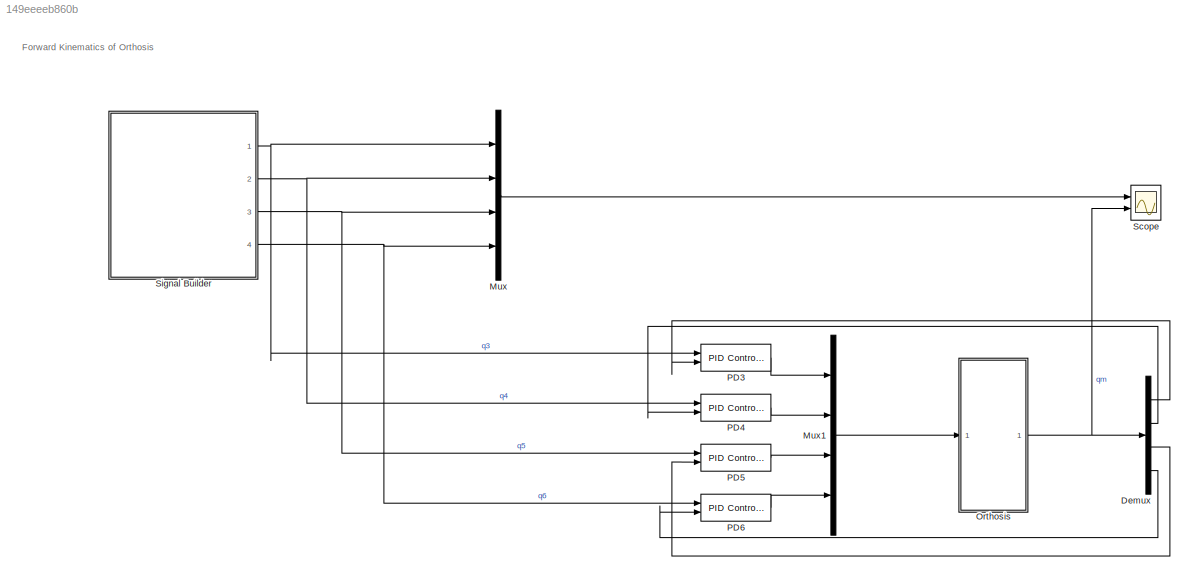
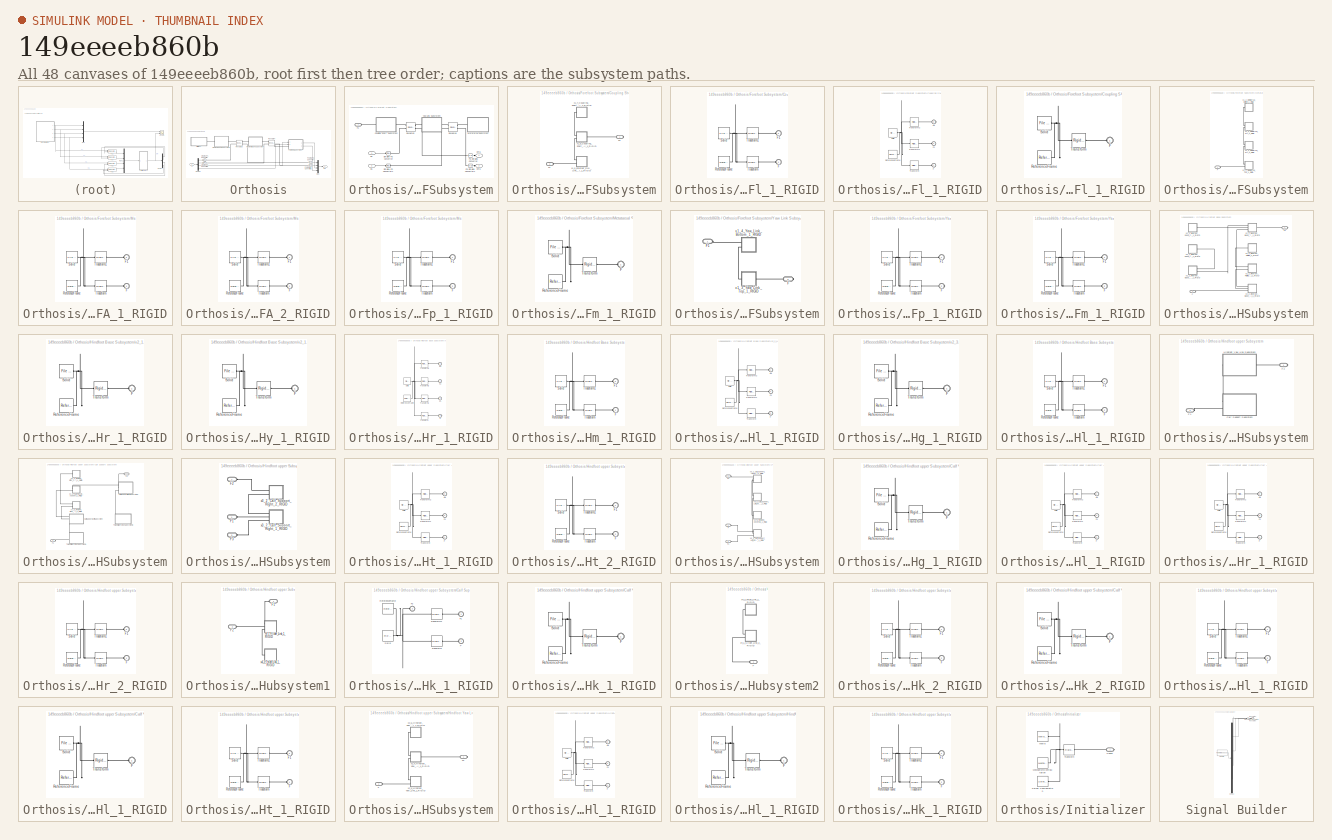
[diagram: thumbnail index - all 48 canvases of the model, root first then tree order]
MODEL slx_149eeeeb860b
KIND model
CONFIG AbsTol = auto
CONFIG EnableMultiTasking = off
CONFIG FixedStep = auto
CONFIG MaxStep = auto
CONFIG MinStep = auto
CONFIG RelTol = 1e-3
CONFIG SampleTimeConstraint = Unconstrained
CONFIG SolverName = VariableStepAuto
CONFIG StartTime = 0.0
CONFIG StopTime = 10.0
WORKSPACE source: external: MATLAB File  (data not in archive)
BLOCK [Demux] Demux
  Ports = [1, 4]
BLOCK [Mux] Mux
  DisplayOption = bar
  Ports = [4, 1]
BLOCK [Mux] Mux1
  DisplayOption = bar
  Ports = [4, 1]
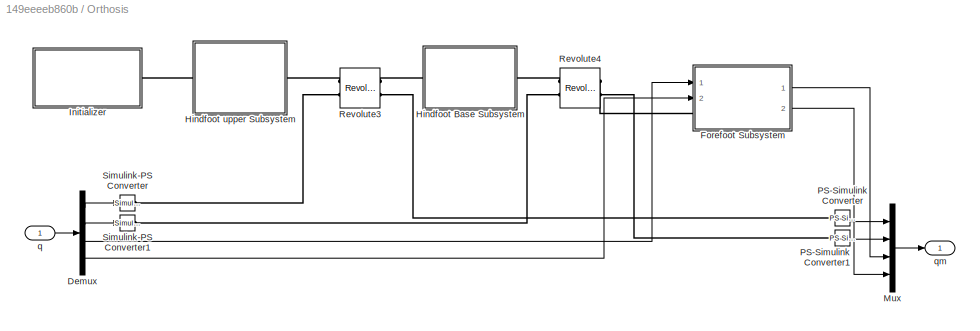
BLOCK [SubSystem] Orthosis
  Ports = [1, 1]
  RequestExecContextInheritance = off
BLOCK [Demux] Orthosis/Demux
  Ports = [1, 4]
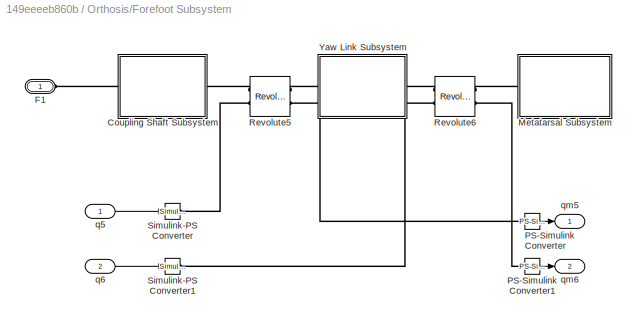
BLOCK [SubSystem] Orthosis/Forefoot Subsystem
  PortSchema = {"entries":[{"content":{"sides":[{"content":{"connectorIds":["LConn1","In1","In2"]},"type":"ConnectorPlacement.EquallySpacedRectSide","uuid":"77f7874f-42d2-4052-a40a-dd0d8474d9cc"},{"content":{"connectorIds":["Out1","Out2"],"side":"RIGHT"},"type":"ConnectorPlacement.EquallySpacedRectSide","uuid":"c3b3e56e-8dc2-4c12-8ffb-9f9294516efa"},{"content":{"connectorIds":[],"side":"TOP"},"type":"ConnectorPl...<+262ch>
  Ports = [2, 2, 0, 0, 0, 1]
  RequestExecContextInheritance = off
BLOCK [SubSystem] Orthosis/Forefoot Subsystem/Coupling Shaft Subsystem
  Ports = [0, 0, 0, 0, 0, 1, 1]
  RequestExecContextInheritance = off
BLOCK [PMIOPort] Orthosis/Forefoot Subsystem/Coupling Shaft Subsystem/F1
  Port = 2
  Side = Left
BLOCK [PMIOPort] Orthosis/Forefoot Subsystem/Coupling Shaft Subsystem/F2
  Side = Right
BLOCK [SubSystem] Orthosis/Forefoot Subsystem/Coupling Shaft Subsystem/x1_5_Forefoot_Roll_Link_metal_1_RIGID
  Ports = [0, 0, 0, 0, 0, 2]
  RequestExecContextInheritance = off
BLOCK [PMIOPort] Orthosis/Forefoot Subsystem/Coupling Shaft Subsystem/x1_5_Forefoot_Roll_Link_metal_1_RIGID/F
  Side = Left
BLOCK [PMIOPort] Orthosis/Forefoot Subsystem/Coupling Shaft Subsystem/x1_5_Forefoot_Roll_Link_metal_1_RIGID/F1
  Port = 2
  Side = Left
BLOCK [Reference] Orthosis/Forefoot Subsystem/Coupling Shaft Subsystem/x1_5_Forefoot_Roll_Link_metal_1_RIGID/ReferenceFrame  REF=sm_lib/Frames and
Transforms/Reference
Frame
  Ports = [0, 0, 0, 0, 0, 0, 1]
  SourceBlock = sm_lib/Frames and\nTransforms/Reference\nFrame
  SourceProductBaseCode = MS
  SourceType = Reference\nFrame
BLOCK [Reference] Orthosis/Forefoot Subsystem/Coupling Shaft Subsystem/x1_5_Forefoot_Roll_Link_metal_1_RIGID/Solid  REF=sm_lib/Body Elements/File Solid
  Ports = [0, 0, 0, 0, 0, 0, 1]
  SourceBlock = sm_lib/Body Elements/File Solid
  SourceProductBaseCode = MS
  SourceType = File Solid
BLOCK [Reference] Orthosis/Forefoot Subsystem/Coupling Shaft Subsystem/x1_5_Forefoot_Roll_Link_metal_1_RIGID/Transform  REF=sm_lib/Frames and
Transforms/Rigid
Transform
  Ports = [0, 0, 0, 0, 0, 1, 1]
  SourceBlock = sm_lib/Frames and\nTransforms/Rigid\nTransform
  SourceProductBaseCode = MS
  SourceType = Rigid\nTransform
BLOCK [Reference] Orthosis/Forefoot Subsystem/Coupling Shaft Subsystem/x1_5_Forefoot_Roll_Link_metal_1_RIGID/Transform1  REF=sm_lib/Frames and
Transforms/Rigid
Transform
  Ports = [0, 0, 0, 0, 0, 1, 1]
  SourceBlock = sm_lib/Frames and\nTransforms/Rigid\nTransform
  SourceProductBaseCode = MS
  SourceType = Rigid\nTransform
BLOCK [SubSystem] Orthosis/Forefoot Subsystem/Coupling Shaft Subsystem/x1_6_Coupling_Shaft_Metal_1_RIGID
  Ports = [0, 0, 0, 0, 0, 2, 1]
  RequestExecContextInheritance = off
BLOCK [PMIOPort] Orthosis/Forefoot Subsystem/Coupling Shaft Subsystem/x1_6_Coupling_Shaft_Metal_1_RIGID/F
  Side = Left
BLOCK [PMIOPort] Orthosis/Forefoot Subsystem/Coupling Shaft Subsystem/x1_6_Coupling_Shaft_Metal_1_RIGID/F1
  Port = 2
  Side = Left
BLOCK [PMIOPort] Orthosis/Forefoot Subsystem/Coupling Shaft Subsystem/x1_6_Coupling_Shaft_Metal_1_RIGID/F2
  Port = 3
  Side = Right
BLOCK [Reference] Orthosis/Forefoot Subsystem/Coupling Shaft Subsystem/x1_6_Coupling_Shaft_Metal_1_RIGID/ReferenceFrame  REF=sm_lib/Frames and
Transforms/Reference
Frame
  Ports = [0, 0, 0, 0, 0, 0, 1]
  SourceBlock = sm_lib/Frames and\nTransforms/Reference\nFrame
  SourceProductBaseCode = MS
  SourceType = Reference\nFrame
BLOCK [Reference] Orthosis/Forefoot Subsystem/Coupling Shaft Subsystem/x1_6_Coupling_Shaft_Metal_1_RIGID/Solid  REF=sm_lib/Body Elements/File Solid
  Ports = [0, 0, 0, 0, 0, 0, 1]
  SourceBlock = sm_lib/Body Elements/File Solid
  SourceProductBaseCode = MS
  SourceType = File Solid
BLOCK [Reference] Orthosis/Forefoot Subsystem/Coupling Shaft Subsystem/x1_6_Coupling_Shaft_Metal_1_RIGID/Transform  REF=sm_lib/Frames and
Transforms/Rigid
Transform
  Ports = [0, 0, 0, 0, 0, 1, 1]
  SourceBlock = sm_lib/Frames and\nTransforms/Rigid\nTransform
  SourceProductBaseCode = MS
  SourceType = Rigid\nTransform
BLOCK [Reference] Orthosis/Forefoot Subsystem/Coupling Shaft Subsystem/x1_6_Coupling_Shaft_Metal_1_RIGID/Transform1  REF=sm_lib/Frames and
Transforms/Rigid
Transform
  Ports = [0, 0, 0, 0, 0, 1, 1]
  SourceBlock = sm_lib/Frames and\nTransforms/Rigid\nTransform
  SourceProductBaseCode = MS
  SourceType = Rigid\nTransform
BLOCK [Reference] Orthosis/Forefoot Subsystem/Coupling Shaft Subsystem/x1_6_Coupling_Shaft_Metal_1_RIGID/Transform2  REF=sm_lib/Frames and
Transforms/Rigid
Transform
  Ports = [0, 0, 0, 0, 0, 1, 1]
  SourceBlock = sm_lib/Frames and\nTransforms/Rigid\nTransform
  SourceProductBaseCode = MS
  SourceType = Rigid\nTransform
BLOCK [SubSystem] Orthosis/Forefoot Subsystem/Coupling Shaft Subsystem/x1_7_Coupling_Shaft_Cap_Metal_1_RIGID
  Ports = [0, 0, 0, 0, 0, 1]
  RequestExecContextInheritance = off
BLOCK [PMIOPort] Orthosis/Forefoot Subsystem/Coupling Shaft Subsystem/x1_7_Coupling_Shaft_Cap_Metal_1_RIGID/F
  Side = Left
BLOCK [Reference] Orthosis/Forefoot Subsystem/Coupling Shaft Subsystem/x1_7_Coupling_Shaft_Cap_Metal_1_RIGID/ReferenceFrame  REF=sm_lib/Frames and
Transforms/Reference
Frame
  Ports = [0, 0, 0, 0, 0, 0, 1]
  SourceBlock = sm_lib/Frames and\nTransforms/Reference\nFrame
  SourceProductBaseCode = MS
  SourceType = Reference\nFrame
BLOCK [Reference] Orthosis/Forefoot Subsystem/Coupling Shaft Subsystem/x1_7_Coupling_Shaft_Cap_Metal_1_RIGID/Solid  REF=sm_lib/Body Elements/File Solid
  Ports = [0, 0, 0, 0, 0, 0, 1]
  SourceBlock = sm_lib/Body Elements/File Solid
  SourceProductBaseCode = MS
  SourceType = File Solid
BLOCK [Reference] Orthosis/Forefoot Subsystem/Coupling Shaft Subsystem/x1_7_Coupling_Shaft_Cap_Metal_1_RIGID/Transform  REF=sm_lib/Frames and
Transforms/Rigid
Transform
  Ports = [0, 0, 0, 0, 0, 1, 1]
  SourceBlock = sm_lib/Frames and\nTransforms/Rigid\nTransform
  SourceProductBaseCode = MS
  SourceType = Rigid\nTransform
BLOCK [PMIOPort] Orthosis/Forefoot Subsystem/F1
  Side = Left
BLOCK [SubSystem] Orthosis/Forefoot Subsystem/Metatarsal Subsystem
  Ports = [0, 0, 0, 0, 0, 1]
  RequestExecContextInheritance = off
BLOCK [PMIOPort] Orthosis/Forefoot Subsystem/Metatarsal Subsystem/F
  Side = Left
BLOCK [SubSystem] Orthosis/Forefoot Subsystem/Metatarsal Subsystem/x1_0_Metatarsal_SLA_1_RIGID
  Ports = [0, 0, 0, 0, 0, 2]
  RequestExecContextInheritance = off
BLOCK [PMIOPort] Orthosis/Forefoot Subsystem/Metatarsal Subsystem/x1_0_Metatarsal_SLA_1_RIGID/F
  Side = Left
BLOCK [PMIOPort] Orthosis/Forefoot Subsystem/Metatarsal Subsystem/x1_0_Metatarsal_SLA_1_RIGID/F1
  Port = 2
  Side = Left
BLOCK [Reference] Orthosis/Forefoot Subsystem/Metatarsal Subsystem/x1_0_Metatarsal_SLA_1_RIGID/ReferenceFrame  REF=sm_lib/Frames and
Transforms/Reference
Frame
  Ports = [0, 0, 0, 0, 0, 0, 1]
  SourceBlock = sm_lib/Frames and\nTransforms/Reference\nFrame
  SourceProductBaseCode = MS
  SourceType = Reference\nFrame
BLOCK [Reference] Orthosis/Forefoot Subsystem/Metatarsal Subsystem/x1_0_Metatarsal_SLA_1_RIGID/Solid  REF=sm_lib/Body Elements/File Solid
  Ports = [0, 0, 0, 0, 0, 0, 1]
  SourceBlock = sm_lib/Body Elements/File Solid
  SourceProductBaseCode = MS
  SourceType = File Solid
BLOCK [Reference] Orthosis/Forefoot Subsystem/Metatarsal Subsystem/x1_0_Metatarsal_SLA_1_RIGID/Transform  REF=sm_lib/Frames and
Transforms/Rigid
Transform
  Ports = [0, 0, 0, 0, 0, 1, 1]
  SourceBlock = sm_lib/Frames and\nTransforms/Rigid\nTransform
  SourceProductBaseCode = MS
  SourceType = Rigid\nTransform
BLOCK [Reference] Orthosis/Forefoot Subsystem/Metatarsal Subsystem/x1_0_Metatarsal_SLA_1_RIGID/Transform1  REF=sm_lib/Frames and
Transforms/Rigid
Transform
  Ports = [0, 0, 0, 0, 0, 1, 1]
  SourceBlock = sm_lib/Frames and\nTransforms/Rigid\nTransform
  SourceProductBaseCode = MS
  SourceType = Rigid\nTransform
BLOCK [SubSystem] Orthosis/Forefoot Subsystem/Metatarsal Subsystem/x1_0_Metatarsal_SLA_2_RIGID
  Ports = [0, 0, 0, 0, 0, 2]
  RequestExecContextInheritance = off
BLOCK [PMIOPort] Orthosis/Forefoot Subsystem/Metatarsal Subsystem/x1_0_Metatarsal_SLA_2_RIGID/F
  Port = 2
  Side = Left
BLOCK [PMIOPort] Orthosis/Forefoot Subsystem/Metatarsal Subsystem/x1_0_Metatarsal_SLA_2_RIGID/F1
  Side = Left
BLOCK [Reference] Orthosis/Forefoot Subsystem/Metatarsal Subsystem/x1_0_Metatarsal_SLA_2_RIGID/ReferenceFrame  REF=sm_lib/Frames and
Transforms/Reference
Frame
  Ports = [0, 0, 0, 0, 0, 0, 1]
  SourceBlock = sm_lib/Frames and\nTransforms/Reference\nFrame
  SourceProductBaseCode = MS
  SourceType = Reference\nFrame
BLOCK [Reference] Orthosis/Forefoot Subsystem/Metatarsal Subsystem/x1_0_Metatarsal_SLA_2_RIGID/Solid  REF=sm_lib/Body Elements/File Solid
  Ports = [0, 0, 0, 0, 0, 0, 1]
  SourceBlock = sm_lib/Body Elements/File Solid
  SourceProductBaseCode = MS
  SourceType = File Solid
BLOCK [Reference] Orthosis/Forefoot Subsystem/Metatarsal Subsystem/x1_0_Metatarsal_SLA_2_RIGID/Transform  REF=sm_lib/Frames and
Transforms/Rigid
Transform
  Ports = [0, 0, 0, 0, 0, 1, 1]
  SourceBlock = sm_lib/Frames and\nTransforms/Rigid\nTransform
  SourceProductBaseCode = MS
  SourceType = Rigid\nTransform
BLOCK [Reference] Orthosis/Forefoot Subsystem/Metatarsal Subsystem/x1_0_Metatarsal_SLA_2_RIGID/Transform1  REF=sm_lib/Frames and
Transforms/Rigid
Transform
  Ports = [0, 0, 0, 0, 0, 1, 1]
  SourceBlock = sm_lib/Frames and\nTransforms/Rigid\nTransform
  SourceProductBaseCode = MS
  SourceType = Rigid\nTransform
BLOCK [SubSystem] Orthosis/Forefoot Subsystem/Metatarsal Subsystem/x1_1_Metatarsal_Top_1_RIGID
  Ports = [0, 0, 0, 0, 0, 2]
  RequestExecContextInheritance = off
BLOCK [PMIOPort] Orthosis/Forefoot Subsystem/Metatarsal Subsystem/x1_1_Metatarsal_Top_1_RIGID/F
  Port = 2
  Side = Left
BLOCK [PMIOPort] Orthosis/Forefoot Subsystem/Metatarsal Subsystem/x1_1_Metatarsal_Top_1_RIGID/F1
  Side = Left
BLOCK [Reference] Orthosis/Forefoot Subsystem/Metatarsal Subsystem/x1_1_Metatarsal_Top_1_RIGID/ReferenceFrame  REF=sm_lib/Frames and
Transforms/Reference
Frame
  Ports = [0, 0, 0, 0, 0, 0, 1]
  SourceBlock = sm_lib/Frames and\nTransforms/Reference\nFrame
  SourceProductBaseCode = MS
  SourceType = Reference\nFrame
BLOCK [Reference] Orthosis/Forefoot Subsystem/Metatarsal Subsystem/x1_1_Metatarsal_Top_1_RIGID/Solid  REF=sm_lib/Body Elements/File Solid
  Ports = [0, 0, 0, 0, 0, 0, 1]
  SourceBlock = sm_lib/Body Elements/File Solid
  SourceProductBaseCode = MS
  SourceType = File Solid
BLOCK [Reference] Orthosis/Forefoot Subsystem/Metatarsal Subsystem/x1_1_Metatarsal_Top_1_RIGID/Transform  REF=sm_lib/Frames and
Transforms/Rigid
Transform
  Ports = [0, 0, 0, 0, 0, 1, 1]
  SourceBlock = sm_lib/Frames and\nTransforms/Rigid\nTransform
  SourceProductBaseCode = MS
  SourceType = Rigid\nTransform
BLOCK [Reference] Orthosis/Forefoot Subsystem/Metatarsal Subsystem/x1_1_Metatarsal_Top_1_RIGID/Transform1  REF=sm_lib/Frames and
Transforms/Rigid
Transform
  Ports = [0, 0, 0, 0, 0, 1, 1]
  SourceBlock = sm_lib/Frames and\nTransforms/Rigid\nTransform
  SourceProductBaseCode = MS
  SourceType = Rigid\nTransform
BLOCK [SubSystem] Orthosis/Forefoot Subsystem/Metatarsal Subsystem/x1_2_Metatarsal_Bottom_1_RIGID
  Ports = [0, 0, 0, 0, 0, 1]
  RequestExecContextInheritance = off
BLOCK [PMIOPort] Orthosis/Forefoot Subsystem/Metatarsal Subsystem/x1_2_Metatarsal_Bottom_1_RIGID/F
  Side = Left
BLOCK [Reference] Orthosis/Forefoot Subsystem/Metatarsal Subsystem/x1_2_Metatarsal_Bottom_1_RIGID/ReferenceFrame  REF=sm_lib/Frames and
Transforms/Reference
Frame
  Ports = [0, 0, 0, 0, 0, 0, 1]
  SourceBlock = sm_lib/Frames and\nTransforms/Reference\nFrame
  SourceProductBaseCode = MS
  SourceType = Reference\nFrame
BLOCK [Reference] Orthosis/Forefoot Subsystem/Metatarsal Subsystem/x1_2_Metatarsal_Bottom_1_RIGID/Solid  REF=sm_lib/Body Elements/File Solid
  Ports = [0, 0, 0, 0, 0, 0, 1]
  SourceBlock = sm_lib/Body Elements/File Solid
  SourceProductBaseCode = MS
  SourceType = File Solid
BLOCK [Reference] Orthosis/Forefoot Subsystem/Metatarsal Subsystem/x1_2_Metatarsal_Bottom_1_RIGID/Transform  REF=sm_lib/Frames and
Transforms/Rigid
Transform
  Ports = [0, 0, 0, 0, 0, 1, 1]
  SourceBlock = sm_lib/Frames and\nTransforms/Rigid\nTransform
  SourceProductBaseCode = MS
  SourceType = Rigid\nTransform
BLOCK [Reference] Orthosis/Forefoot Subsystem/PS-Simulink Converter  REF=nesl_utility/PS-Simulink
Converter
  Ports = [0, 1, 0, 0, 0, 1]
  SourceBlock = nesl_utility/PS-Simulink\nConverter
  SourceProductBaseCode = PW,SS
  SourceType = PS-Simulink\nConverter
BLOCK [Reference] Orthosis/Forefoot Subsystem/PS-Simulink Converter1  REF=nesl_utility/PS-Simulink
Converter
  Ports = [0, 1, 0, 0, 0, 1]
  SourceBlock = nesl_utility/PS-Simulink\nConverter
  SourceProductBaseCode = PW,SS
  SourceType = PS-Simulink\nConverter
BLOCK [Reference] Orthosis/Forefoot Subsystem/Revolute5  REF=sm_lib/Joints/Revolute Joint
  Ports = [0, 0, 0, 0, 0, 2, 2]
  SourceBlock = sm_lib/Joints/Revolute Joint
  SourceProductBaseCode = MS
  SourceType = Revolute Joint
BLOCK [Reference] Orthosis/Forefoot Subsystem/Revolute6  REF=sm_lib/Joints/Revolute Joint
  Ports = [0, 0, 0, 0, 0, 2, 2]
  SourceBlock = sm_lib/Joints/Revolute Joint
  SourceProductBaseCode = MS
  SourceType = Revolute Joint
BLOCK [Reference] Orthosis/Forefoot Subsystem/Simulink-PS Converter  REF=nesl_utility/Simulink-PS
Converter
  Ports = [1, 0, 0, 0, 0, 0, 1]
  SourceBlock = nesl_utility/Simulink-PS\nConverter
  SourceProductBaseCode = PW,SS
  SourceType = Simulink-PS\nConverter
BLOCK [Reference] Orthosis/Forefoot Subsystem/Simulink-PS Converter1  REF=nesl_utility/Simulink-PS
Converter
  Ports = [1, 0, 0, 0, 0, 0, 1]
  SourceBlock = nesl_utility/Simulink-PS\nConverter
  SourceProductBaseCode = PW,SS
  SourceType = Simulink-PS\nConverter
BLOCK [SubSystem] Orthosis/Forefoot Subsystem/Yaw Link Subsystem
  Ports = [0, 0, 0, 0, 0, 1, 1]
  RequestExecContextInheritance = off
BLOCK [PMIOPort] Orthosis/Forefoot Subsystem/Yaw Link Subsystem/F
  Port = 2
  Side = Right
BLOCK [PMIOPort] Orthosis/Forefoot Subsystem/Yaw Link Subsystem/F1
  Side = Left
BLOCK [SubSystem] Orthosis/Forefoot Subsystem/Yaw Link Subsystem/x1_3_Yaw_Link_Top_1_RIGID
  Ports = [0, 0, 0, 0, 0, 1, 1]
  RequestExecContextInheritance = off
BLOCK [PMIOPort] Orthosis/Forefoot Subsystem/Yaw Link Subsystem/x1_3_Yaw_Link_Top_1_RIGID/F
  Port = 2
  Side = Right
BLOCK [PMIOPort] Orthosis/Forefoot Subsystem/Yaw Link Subsystem/x1_3_Yaw_Link_Top_1_RIGID/F1
  Side = Left
BLOCK [Reference] Orthosis/Forefoot Subsystem/Yaw Link Subsystem/x1_3_Yaw_Link_Top_1_RIGID/ReferenceFrame  REF=sm_lib/Frames and
Transforms/Reference
Frame
  Ports = [0, 0, 0, 0, 0, 0, 1]
  SourceBlock = sm_lib/Frames and\nTransforms/Reference\nFrame
  SourceProductBaseCode = MS
  SourceType = Reference\nFrame
BLOCK [Reference] Orthosis/Forefoot Subsystem/Yaw Link Subsystem/x1_3_Yaw_Link_Top_1_RIGID/Solid  REF=sm_lib/Body Elements/File Solid
  Ports = [0, 0, 0, 0, 0, 0, 1]
  SourceBlock = sm_lib/Body Elements/File Solid
  SourceProductBaseCode = MS
  SourceType = File Solid
BLOCK [Reference] Orthosis/Forefoot Subsystem/Yaw Link Subsystem/x1_3_Yaw_Link_Top_1_RIGID/Transform  REF=sm_lib/Frames and
Transforms/Rigid
Transform
  Ports = [0, 0, 0, 0, 0, 1, 1]
  SourceBlock = sm_lib/Frames and\nTransforms/Rigid\nTransform
  SourceProductBaseCode = MS
  SourceType = Rigid\nTransform
BLOCK [Reference] Orthosis/Forefoot Subsystem/Yaw Link Subsystem/x1_3_Yaw_Link_Top_1_RIGID/Transform1  REF=sm_lib/Frames and
Transforms/Rigid
Transform
  Ports = [0, 0, 0, 0, 0, 1, 1]
  SourceBlock = sm_lib/Frames and\nTransforms/Rigid\nTransform
  SourceProductBaseCode = MS
  SourceType = Rigid\nTransform
BLOCK [SubSystem] Orthosis/Forefoot Subsystem/Yaw Link Subsystem/x1_4_Yaw_Link_Bottom_1_RIGID
  Ports = [0, 0, 0, 0, 0, 2]
  RequestExecContextInheritance = off
BLOCK [PMIOPort] Orthosis/Forefoot Subsystem/Yaw Link Subsystem/x1_4_Yaw_Link_Bottom_1_RIGID/F
  Port = 2
  Side = Left
BLOCK [PMIOPort] Orthosis/Forefoot Subsystem/Yaw Link Subsystem/x1_4_Yaw_Link_Bottom_1_RIGID/F1
  Side = Left
BLOCK [Reference] Orthosis/Forefoot Subsystem/Yaw Link Subsystem/x1_4_Yaw_Link_Bottom_1_RIGID/ReferenceFrame  REF=sm_lib/Frames and
Transforms/Reference
Frame
  Ports = [0, 0, 0, 0, 0, 0, 1]
  SourceBlock = sm_lib/Frames and\nTransforms/Reference\nFrame
  SourceProductBaseCode = MS
  SourceType = Reference\nFrame
BLOCK [Reference] Orthosis/Forefoot Subsystem/Yaw Link Subsystem/x1_4_Yaw_Link_Bottom_1_RIGID/Solid  REF=sm_lib/Body Elements/File Solid
  Ports = [0, 0, 0, 0, 0, 0, 1]
  SourceBlock = sm_lib/Body Elements/File Solid
  SourceProductBaseCode = MS
  SourceType = File Solid
BLOCK [Reference] Orthosis/Forefoot Subsystem/Yaw Link Subsystem/x1_4_Yaw_Link_Bottom_1_RIGID/Transform  REF=sm_lib/Frames and
Transforms/Rigid
Transform
  Ports = [0, 0, 0, 0, 0, 1, 1]
  SourceBlock = sm_lib/Frames and\nTransforms/Rigid\nTransform
  SourceProductBaseCode = MS
  SourceType = Rigid\nTransform
BLOCK [Reference] Orthosis/Forefoot Subsystem/Yaw Link Subsystem/x1_4_Yaw_Link_Bottom_1_RIGID/Transform1  REF=sm_lib/Frames and
Transforms/Rigid
Transform
  Ports = [0, 0, 0, 0, 0, 1, 1]
  SourceBlock = sm_lib/Frames and\nTransforms/Rigid\nTransform
  SourceProductBaseCode = MS
  SourceType = Rigid\nTransform
BLOCK [Inport] Orthosis/Forefoot Subsystem/q5
BLOCK [Inport] Orthosis/Forefoot Subsystem/q6
  Port = 2
BLOCK [Outport] Orthosis/Forefoot Subsystem/qm5
BLOCK [Outport] Orthosis/Forefoot Subsystem/qm6
  Port = 2
BLOCK [SubSystem] Orthosis/Hindfoot Base Subsystem
  Ports = [0, 0, 0, 0, 0, 1, 1]
  RequestExecContextInheritance = off
BLOCK [PMIOPort] Orthosis/Hindfoot Base Subsystem/F
  Side = Left
BLOCK [PMIOPort] Orthosis/Hindfoot Base Subsystem/F1
  Port = 2
  Side = Right
BLOCK [SubSystem] Orthosis/Hindfoot Base Subsystem/x2_1_Hindfoot_base_lower_1_RIGID
  Ports = [0, 0, 0, 0, 0, 1]
  RequestExecContextInheritance = off
BLOCK [PMIOPort] Orthosis/Hindfoot Base Subsystem/x2_1_Hindfoot_base_lower_1_RIGID/F
  Side = Left
BLOCK [Reference] Orthosis/Hindfoot Base Subsystem/x2_1_Hindfoot_base_lower_1_RIGID/ReferenceFrame  REF=sm_lib/Frames and
Transforms/Reference
Frame
  Ports = [0, 0, 0, 0, 0, 0, 1]
  SourceBlock = sm_lib/Frames and\nTransforms/Reference\nFrame
  SourceProductBaseCode = MS
  SourceType = Reference\nFrame
BLOCK [Reference] Orthosis/Hindfoot Base Subsystem/x2_1_Hindfoot_base_lower_1_RIGID/Solid  REF=sm_lib/Body Elements/File Solid
  Ports = [0, 0, 0, 0, 0, 0, 1]
  SourceBlock = sm_lib/Body Elements/File Solid
  SourceProductBaseCode = MS
  SourceType = File Solid
BLOCK [Reference] Orthosis/Hindfoot Base Subsystem/x2_1_Hindfoot_base_lower_1_RIGID/Transform  REF=sm_lib/Frames and
Transforms/Rigid
Transform
  Ports = [0, 0, 0, 0, 0, 1, 1]
  SourceBlock = sm_lib/Frames and\nTransforms/Rigid\nTransform
  SourceProductBaseCode = MS
  SourceType = Rigid\nTransform
BLOCK [SubSystem] Orthosis/Hindfoot Base Subsystem/x2_1_Hindfoot_base_lower_Metal_Copy_1_RIGID
  Ports = [0, 0, 0, 0, 0, 1]
  RequestExecContextInheritance = off
BLOCK [PMIOPort] Orthosis/Hindfoot Base Subsystem/x2_1_Hindfoot_base_lower_Metal_Copy_1_RIGID/F
  Side = Left
BLOCK [Reference] Orthosis/Hindfoot Base Subsystem/x2_1_Hindfoot_base_lower_Metal_Copy_1_RIGID/ReferenceFrame  REF=sm_lib/Frames and
Transforms/Reference
Frame
  Ports = [0, 0, 0, 0, 0, 0, 1]
  SourceBlock = sm_lib/Frames and\nTransforms/Reference\nFrame
  SourceProductBaseCode = MS
  SourceType = Reference\nFrame
BLOCK [Reference] Orthosis/Hindfoot Base Subsystem/x2_1_Hindfoot_base_lower_Metal_Copy_1_RIGID/Solid  REF=sm_lib/Body Elements/File Solid
  Ports = [0, 0, 0, 0, 0, 0, 1]
  SourceBlock = sm_lib/Body Elements/File Solid
  SourceProductBaseCode = MS
  SourceType = File Solid
BLOCK [Reference] Orthosis/Hindfoot Base Subsystem/x2_1_Hindfoot_base_lower_Metal_Copy_1_RIGID/Transform  REF=sm_lib/Frames and
Transforms/Rigid
Transform
  Ports = [0, 0, 0, 0, 0, 1, 1]
  SourceBlock = sm_lib/Frames and\nTransforms/Rigid\nTransform
  SourceProductBaseCode = MS
  SourceType = Rigid\nTransform
BLOCK [SubSystem] Orthosis/Hindfoot Base Subsystem/x2_2_Hindfoot_Base_Upper_1_RIGID
  Ports = [0, 0, 0, 0, 0, 3, 1]
  RequestExecContextInheritance = off
BLOCK [PMIOPort] Orthosis/Hindfoot Base Subsystem/x2_2_Hindfoot_Base_Upper_1_RIGID/F
  Port = 4
  Side = Right
BLOCK [PMIOPort] Orthosis/Hindfoot Base Subsystem/x2_2_Hindfoot_Base_Upper_1_RIGID/F1
  Port = 3
  Side = Left
BLOCK [PMIOPort] Orthosis/Hindfoot Base Subsystem/x2_2_Hindfoot_Base_Upper_1_RIGID/F2
  Side = Left
BLOCK [PMIOPort] Orthosis/Hindfoot Base Subsystem/x2_2_Hindfoot_Base_Upper_1_RIGID/F3
  Port = 2
  Side = Left
BLOCK [Reference] Orthosis/Hindfoot Base Subsystem/x2_2_Hindfoot_Base_Upper_1_RIGID/ReferenceFrame  REF=sm_lib/Frames and
Transforms/Reference
Frame
  Ports = [0, 0, 0, 0, 0, 0, 1]
  SourceBlock = sm_lib/Frames and\nTransforms/Reference\nFrame
  SourceProductBaseCode = MS
  SourceType = Reference\nFrame
BLOCK [Reference] Orthosis/Hindfoot Base Subsystem/x2_2_Hindfoot_Base_Upper_1_RIGID/Solid  REF=sm_lib/Body Elements/File Solid
  Ports = [0, 0, 0, 0, 0, 0, 1]
  SourceBlock = sm_lib/Body Elements/File Solid
  SourceProductBaseCode = MS
  SourceType = File Solid
BLOCK [Reference] Orthosis/Hindfoot Base Subsystem/x2_2_Hindfoot_Base_Upper_1_RIGID/Transform  REF=sm_lib/Frames and
Transforms/Rigid
Transform
  Ports = [0, 0, 0, 0, 0, 1, 1]
  SourceBlock = sm_lib/Frames and\nTransforms/Rigid\nTransform
  SourceProductBaseCode = MS
  SourceType = Rigid\nTransform
BLOCK [Reference] Orthosis/Hindfoot Base Subsystem/x2_2_Hindfoot_Base_Upper_1_RIGID/Transform1  REF=sm_lib/Frames and
Transforms/Rigid
Transform
  Ports = [0, 0, 0, 0, 0, 1, 1]
  SourceBlock = sm_lib/Frames and\nTransforms/Rigid\nTransform
  SourceProductBaseCode = MS
  SourceType = Rigid\nTransform
BLOCK [Reference] Orthosis/Hindfoot Base Subsystem/x2_2_Hindfoot_Base_Upper_1_RIGID/Transform2  REF=sm_lib/Frames and
Transforms/Rigid
Transform
  Ports = [0, 0, 0, 0, 0, 1, 1]
  SourceBlock = sm_lib/Frames and\nTransforms/Rigid\nTransform
  SourceProductBaseCode = MS
  SourceType = Rigid\nTransform
BLOCK [Reference] Orthosis/Hindfoot Base Subsystem/x2_2_Hindfoot_Base_Upper_1_RIGID/Transform3  REF=sm_lib/Frames and
Transforms/Rigid
Transform
  Ports = [0, 0, 0, 0, 0, 1, 1]
  SourceBlock = sm_lib/Frames and\nTransforms/Rigid\nTransform
  SourceProductBaseCode = MS
  SourceType = Rigid\nTransform
BLOCK [SubSystem] Orthosis/Hindfoot Base Subsystem/x2_2_Hindfoot_Base_Upper_Metal_Bottom_1_RIGID
  Ports = [0, 0, 0, 0, 0, 2]
  RequestExecContextInheritance = off
BLOCK [PMIOPort] Orthosis/Hindfoot Base Subsystem/x2_2_Hindfoot_Base_Upper_Metal_Bottom_1_RIGID/F
  Side = Left
BLOCK [PMIOPort] Orthosis/Hindfoot Base Subsystem/x2_2_Hindfoot_Base_Upper_Metal_Bottom_1_RIGID/F1
  Port = 2
  Side = Left
BLOCK [Reference] Orthosis/Hindfoot Base Subsystem/x2_2_Hindfoot_Base_Upper_Metal_Bottom_1_RIGID/ReferenceFrame  REF=sm_lib/Frames and
Transforms/Reference
Frame
  Ports = [0, 0, 0, 0, 0, 0, 1]
  SourceBlock = sm_lib/Frames and\nTransforms/Reference\nFrame
  SourceProductBaseCode = MS
  SourceType = Reference\nFrame
BLOCK [Reference] Orthosis/Hindfoot Base Subsystem/x2_2_Hindfoot_Base_Upper_Metal_Bottom_1_RIGID/Solid  REF=sm_lib/Body Elements/File Solid
  Ports = [0, 0, 0, 0, 0, 0, 1]
  SourceBlock = sm_lib/Body Elements/File Solid
  SourceProductBaseCode = MS
  SourceType = File Solid
BLOCK [Reference] Orthosis/Hindfoot Base Subsystem/x2_2_Hindfoot_Base_Upper_Metal_Bottom_1_RIGID/Transform  REF=sm_lib/Frames and
Transforms/Rigid
Transform
  Ports = [0, 0, 0, 0, 0, 1, 1]
  SourceBlock = sm_lib/Frames and\nTransforms/Rigid\nTransform
  SourceProductBaseCode = MS
  SourceType = Rigid\nTransform
BLOCK [Reference] Orthosis/Hindfoot Base Subsystem/x2_2_Hindfoot_Base_Upper_Metal_Bottom_1_RIGID/Transform1  REF=sm_lib/Frames and
Transforms/Rigid
Transform
  Ports = [0, 0, 0, 0, 0, 1, 1]
  SourceBlock = sm_lib/Frames and\nTransforms/Rigid\nTransform
  SourceProductBaseCode = MS
  SourceType = Rigid\nTransform
BLOCK [SubSystem] Orthosis/Hindfoot Base Subsystem/x2_2_Hindfoot_Base_Upper_Metal_Roll_1_RIGID
  Ports = [0, 0, 0, 0, 0, 3]
  RequestExecContextInheritance = off
BLOCK [PMIOPort] Orthosis/Hindfoot Base Subsystem/x2_2_Hindfoot_Base_Upper_Metal_Roll_1_RIGID/F
  Port = 3
  Side = Left
BLOCK [PMIOPort] Orthosis/Hindfoot Base Subsystem/x2_2_Hindfoot_Base_Upper_Metal_Roll_1_RIGID/F1
  Port = 2
  Side = Left
BLOCK [PMIOPort] Orthosis/Hindfoot Base Subsystem/x2_2_Hindfoot_Base_Upper_Metal_Roll_1_RIGID/F2
  Side = Left
BLOCK [Reference] Orthosis/Hindfoot Base Subsystem/x2_2_Hindfoot_Base_Upper_Metal_Roll_1_RIGID/ReferenceFrame  REF=sm_lib/Frames and
Transforms/Reference
Frame
  Ports = [0, 0, 0, 0, 0, 0, 1]
  SourceBlock = sm_lib/Frames and\nTransforms/Reference\nFrame
  SourceProductBaseCode = MS
  SourceType = Reference\nFrame
BLOCK [Reference] Orthosis/Hindfoot Base Subsystem/x2_2_Hindfoot_Base_Upper_Metal_Roll_1_RIGID/Solid  REF=sm_lib/Body Elements/File Solid
  Ports = [0, 0, 0, 0, 0, 0, 1]
  SourceBlock = sm_lib/Body Elements/File Solid
  SourceProductBaseCode = MS
  SourceType = File Solid
BLOCK [Reference] Orthosis/Hindfoot Base Subsystem/x2_2_Hindfoot_Base_Upper_Metal_Roll_1_RIGID/Transform  REF=sm_lib/Frames and
Transforms/Rigid
Transform
  Ports = [0, 0, 0, 0, 0, 1, 1]
  SourceBlock = sm_lib/Frames and\nTransforms/Rigid\nTransform
  SourceProductBaseCode = MS
  SourceType = Rigid\nTransform
BLOCK [Reference] Orthosis/Hindfoot Base Subsystem/x2_2_Hindfoot_Base_Upper_Metal_Roll_1_RIGID/Transform1  REF=sm_lib/Frames and
Transforms/Rigid
Transform
  Ports = [0, 0, 0, 0, 0, 1, 1]
  SourceBlock = sm_lib/Frames and\nTransforms/Rigid\nTransform
  SourceProductBaseCode = MS
  SourceType = Rigid\nTransform
BLOCK [Reference] Orthosis/Hindfoot Base Subsystem/x2_2_Hindfoot_Base_Upper_Metal_Roll_1_RIGID/Transform2  REF=sm_lib/Frames and
Transforms/Rigid
Transform
  Ports = [0, 0, 0, 0, 0, 1, 1]
  SourceBlock = sm_lib/Frames and\nTransforms/Rigid\nTransform
  SourceProductBaseCode = MS
  SourceType = Rigid\nTransform
BLOCK [SubSystem] Orthosis/Hindfoot Base Subsystem/x2_3_Hindfoot_Rolling_1_RIGID
  Ports = [0, 0, 0, 0, 0, 1]
  RequestExecContextInheritance = off
BLOCK [PMIOPort] Orthosis/Hindfoot Base Subsystem/x2_3_Hindfoot_Rolling_1_RIGID/F
  Side = Left
BLOCK [Reference] Orthosis/Hindfoot Base Subsystem/x2_3_Hindfoot_Rolling_1_RIGID/ReferenceFrame  REF=sm_lib/Frames and
Transforms/Reference
Frame
  Ports = [0, 0, 0, 0, 0, 0, 1]
  SourceBlock = sm_lib/Frames and\nTransforms/Reference\nFrame
  SourceProductBaseCode = MS
  SourceType = Reference\nFrame
BLOCK [Reference] Orthosis/Hindfoot Base Subsystem/x2_3_Hindfoot_Rolling_1_RIGID/Solid  REF=sm_lib/Body Elements/File Solid
  Ports = [0, 0, 0, 0, 0, 0, 1]
  SourceBlock = sm_lib/Body Elements/File Solid
  SourceProductBaseCode = MS
  SourceType = File Solid
BLOCK [Reference] Orthosis/Hindfoot Base Subsystem/x2_3_Hindfoot_Rolling_1_RIGID/Transform  REF=sm_lib/Frames and
Transforms/Rigid
Transform
  Ports = [0, 0, 0, 0, 0, 1, 1]
  SourceBlock = sm_lib/Frames and\nTransforms/Rigid\nTransform
  SourceProductBaseCode = MS
  SourceType = Rigid\nTransform
BLOCK [SubSystem] Orthosis/Hindfoot Base Subsystem/x2_3_Hindfoot_Rolling_Metal_1_RIGID
  Ports = [0, 0, 0, 0, 0, 2]
  RequestExecContextInheritance = off
BLOCK [PMIOPort] Orthosis/Hindfoot Base Subsystem/x2_3_Hindfoot_Rolling_Metal_1_RIGID/F
  Port = 2
  Side = Left
BLOCK [PMIOPort] Orthosis/Hindfoot Base Subsystem/x2_3_Hindfoot_Rolling_Metal_1_RIGID/F1
  Side = Left
BLOCK [Reference] Orthosis/Hindfoot Base Subsystem/x2_3_Hindfoot_Rolling_Metal_1_RIGID/ReferenceFrame  REF=sm_lib/Frames and
Transforms/Reference
Frame
  Ports = [0, 0, 0, 0, 0, 0, 1]
  SourceBlock = sm_lib/Frames and\nTransforms/Reference\nFrame
  SourceProductBaseCode = MS
  SourceType = Reference\nFrame
BLOCK [Reference] Orthosis/Hindfoot Base Subsystem/x2_3_Hindfoot_Rolling_Metal_1_RIGID/Solid  REF=sm_lib/Body Elements/File Solid
  Ports = [0, 0, 0, 0, 0, 0, 1]
  SourceBlock = sm_lib/Body Elements/File Solid
  SourceProductBaseCode = MS
  SourceType = File Solid
BLOCK [Reference] Orthosis/Hindfoot Base Subsystem/x2_3_Hindfoot_Rolling_Metal_1_RIGID/Transform  REF=sm_lib/Frames and
Transforms/Rigid
Transform
  Ports = [0, 0, 0, 0, 0, 1, 1]
  SourceBlock = sm_lib/Frames and\nTransforms/Rigid\nTransform
  SourceProductBaseCode = MS
  SourceType = Rigid\nTransform
BLOCK [Reference] Orthosis/Hindfoot Base Subsystem/x2_3_Hindfoot_Rolling_Metal_1_RIGID/Transform1  REF=sm_lib/Frames and
Transforms/Rigid
Transform
  Ports = [0, 0, 0, 0, 0, 1, 1]
  SourceBlock = sm_lib/Frames and\nTransforms/Rigid\nTransform
  SourceProductBaseCode = MS
  SourceType = Rigid\nTransform
BLOCK [SubSystem] Orthosis/Hindfoot upper Subsystem
  Ports = [0, 0, 0, 0, 0, 1, 1]
  RequestExecContextInheritance = off
BLOCK [SubSystem] Orthosis/Hindfoot upper Subsystem/Calf Support Subsystem
  Ports = [0, 0, 0, 0, 0, 2]
  RequestExecContextInheritance = off
BLOCK [SubSystem] Orthosis/Hindfoot upper Subsystem/Calf Support Subsystem/Calf Support Left Subsystem
  Ports = [0, 0, 0, 0, 0, 3]
  RequestExecContextInheritance = off
BLOCK [PMIOPort] Orthosis/Hindfoot upper Subsystem/Calf Support Subsystem/Calf Support Left Subsystem/F
  NameLocation = top
  Side = Left
BLOCK [PMIOPort] Orthosis/Hindfoot upper Subsystem/Calf Support Subsystem/Calf Support Left Subsystem/F1
  NameLocation = top
  Port = 3
  Side = Left
BLOCK [PMIOPort] Orthosis/Hindfoot upper Subsystem/Calf Support Subsystem/Calf Support Left Subsystem/F2
  NameLocation = top
  Port = 2
  Side = Left
BLOCK [SubSystem] Orthosis/Hindfoot upper Subsystem/Calf Support Subsystem/Calf Support Left Subsystem/x2_6_Hindfoot_Covering_1_RIGID
  Ports = [0, 0, 0, 0, 0, 1]
  RequestExecContextInheritance = off
BLOCK [PMIOPort] Orthosis/Hindfoot upper Subsystem/Calf Support Subsystem/Calf Support Left Subsystem/x2_6_Hindfoot_Covering_1_RIGID/F
  Side = Left
BLOCK [Reference] Orthosis/Hindfoot upper Subsystem/Calf Support Subsystem/Calf Support Left Subsystem/x2_6_Hindfoot_Covering_1_RIGID/ReferenceFrame  REF=sm_lib/Frames and
Transforms/Reference
Frame
  Ports = [0, 0, 0, 0, 0, 0, 1]
  SourceBlock = sm_lib/Frames and\nTransforms/Reference\nFrame
  SourceProductBaseCode = MS
  SourceType = Reference\nFrame
BLOCK [Reference] Orthosis/Hindfoot upper Subsystem/Calf Support Subsystem/Calf Support Left Subsystem/x2_6_Hindfoot_Covering_1_RIGID/Solid  REF=sm_lib/Body Elements/File Solid
  Ports = [0, 0, 0, 0, 0, 0, 1]
  SourceBlock = sm_lib/Body Elements/File Solid
  SourceProductBaseCode = MS
  SourceType = File Solid
BLOCK [Reference] Orthosis/Hindfoot upper Subsystem/Calf Support Subsystem/Calf Support Left Subsystem/x2_6_Hindfoot_Covering_1_RIGID/Transform  REF=sm_lib/Frames and
Transforms/Rigid
Transform
  Ports = [0, 0, 0, 0, 0, 1, 1]
  SourceBlock = sm_lib/Frames and\nTransforms/Rigid\nTransform
  SourceProductBaseCode = MS
  SourceType = Rigid\nTransform
BLOCK [SubSystem] Orthosis/Hindfoot upper Subsystem/Calf Support Subsystem/Calf Support Left Subsystem/x3_1_Calf_Support_Left_metal_1_RIGID
  Ports = [0, 0, 0, 0, 0, 3]
  RequestExecContextInheritance = off
BLOCK [PMIOPort] Orthosis/Hindfoot upper Subsystem/Calf Support Subsystem/Calf Support Left Subsystem/x3_1_Calf_Support_Left_metal_1_RIGID/F
  Port = 3
  Side = Left
BLOCK [PMIOPort] Orthosis/Hindfoot upper Subsystem/Calf Support Subsystem/Calf Support Left Subsystem/x3_1_Calf_Support_Left_metal_1_RIGID/F1
  Port = 2
  Side = Left
BLOCK [PMIOPort] Orthosis/Hindfoot upper Subsystem/Calf Support Subsystem/Calf Support Left Subsystem/x3_1_Calf_Support_Left_metal_1_RIGID/F2
  Side = Left
BLOCK [Reference] Orthosis/Hindfoot upper Subsystem/Calf Support Subsystem/Calf Support Left Subsystem/x3_1_Calf_Support_Left_metal_1_RIGID/ReferenceFrame  REF=sm_lib/Frames and
Transforms/Reference
Frame
  Ports = [0, 0, 0, 0, 0, 0, 1]
  SourceBlock = sm_lib/Frames and\nTransforms/Reference\nFrame
  SourceProductBaseCode = MS
  SourceType = Reference\nFrame
BLOCK [Reference] Orthosis/Hindfoot upper Subsystem/Calf Support Subsystem/Calf Support Left Subsystem/x3_1_Calf_Support_Left_metal_1_RIGID/Solid  REF=sm_lib/Body Elements/File Solid
  Ports = [0, 0, 0, 0, 0, 0, 1]
  SourceBlock = sm_lib/Body Elements/File Solid
  SourceProductBaseCode = MS
  SourceType = File Solid
BLOCK [Reference] Orthosis/Hindfoot upper Subsystem/Calf Support Subsystem/Calf Support Left Subsystem/x3_1_Calf_Support_Left_metal_1_RIGID/Transform  REF=sm_lib/Frames and
Transforms/Rigid
Transform
  Ports = [0, 0, 0, 0, 0, 1, 1]
  SourceBlock = sm_lib/Frames and\nTransforms/Rigid\nTransform
  SourceProductBaseCode = MS
  SourceType = Rigid\nTransform
BLOCK [Reference] Orthosis/Hindfoot upper Subsystem/Calf Support Subsystem/Calf Support Left Subsystem/x3_1_Calf_Support_Left_metal_1_RIGID/Transform1  REF=sm_lib/Frames and
Transforms/Rigid
Transform
  Ports = [0, 0, 0, 0, 0, 1, 1]
  SourceBlock = sm_lib/Frames and\nTransforms/Rigid\nTransform
  SourceProductBaseCode = MS
  SourceType = Rigid\nTransform
BLOCK [Reference] Orthosis/Hindfoot upper Subsystem/Calf Support Subsystem/Calf Support Left Subsystem/x3_1_Calf_Support_Left_metal_1_RIGID/Transform2  REF=sm_lib/Frames and
Transforms/Rigid
Transform
  Ports = [0, 0, 0, 0, 0, 1, 1]
  SourceBlock = sm_lib/Frames and\nTransforms/Rigid\nTransform
  SourceProductBaseCode = MS
  SourceType = Rigid\nTransform
BLOCK [SubSystem] Orthosis/Hindfoot upper Subsystem/Calf Support Subsystem/Calf Support Left Subsystem/x3_1_Calf_Support_Left_poly_upper_1_RIGID
  Ports = [0, 0, 0, 0, 0, 3]
  RequestExecContextInheritance = off
BLOCK [PMIOPort] Orthosis/Hindfoot upper Subsystem/Calf Support Subsystem/Calf Support Left Subsystem/x3_1_Calf_Support_Left_poly_upper_1_RIGID/F
  Side = Left
BLOCK [PMIOPort] Orthosis/Hindfoot upper Subsystem/Calf Support Subsystem/Calf Support Left Subsystem/x3_1_Calf_Support_Left_poly_upper_1_RIGID/F1
  Port = 3
  Side = Left
BLOCK [PMIOPort] Orthosis/Hindfoot upper Subsystem/Calf Support Subsystem/Calf Support Left Subsystem/x3_1_Calf_Support_Left_poly_upper_1_RIGID/F2
  Port = 2
  Side = Left
BLOCK [Reference] Orthosis/Hindfoot upper Subsystem/Calf Support Subsystem/Calf Support Left Subsystem/x3_1_Calf_Support_Left_poly_upper_1_RIGID/ReferenceFrame  REF=sm_lib/Frames and
Transforms/Reference
Frame
  Ports = [0, 0, 0, 0, 0, 0, 1]
  SourceBlock = sm_lib/Frames and\nTransforms/Reference\nFrame
  SourceProductBaseCode = MS
  SourceType = Reference\nFrame
BLOCK [Reference] Orthosis/Hindfoot upper Subsystem/Calf Support Subsystem/Calf Support Left Subsystem/x3_1_Calf_Support_Left_poly_upper_1_RIGID/Solid  REF=sm_lib/Body Elements/File Solid
  Ports = [0, 0, 0, 0, 0, 0, 1]
  SourceBlock = sm_lib/Body Elements/File Solid
  SourceProductBaseCode = MS
  SourceType = File Solid
BLOCK [Reference] Orthosis/Hindfoot upper Subsystem/Calf Support Subsystem/Calf Support Left Subsystem/x3_1_Calf_Support_Left_poly_upper_1_RIGID/Transform  REF=sm_lib/Frames and
Transforms/Rigid
Transform
  Ports = [0, 0, 0, 0, 0, 1, 1]
  SourceBlock = sm_lib/Frames and\nTransforms/Rigid\nTransform
  SourceProductBaseCode = MS
  SourceType = Rigid\nTransform
BLOCK [Reference] Orthosis/Hindfoot upper Subsystem/Calf Support Subsystem/Calf Support Left Subsystem/x3_1_Calf_Support_Left_poly_upper_1_RIGID/Transform1  REF=sm_lib/Frames and
Transforms/Rigid
Transform
  Ports = [0, 0, 0, 0, 0, 1, 1]
  SourceBlock = sm_lib/Frames and\nTransforms/Rigid\nTransform
  SourceProductBaseCode = MS
  SourceType = Rigid\nTransform
BLOCK [Reference] Orthosis/Hindfoot upper Subsystem/Calf Support Subsystem/Calf Support Left Subsystem/x3_1_Calf_Support_Left_poly_upper_1_RIGID/Transform2  REF=sm_lib/Frames and
Transforms/Rigid
Transform
  Ports = [0, 0, 0, 0, 0, 1, 1]
  SourceBlock = sm_lib/Frames and\nTransforms/Rigid\nTransform
  SourceProductBaseCode = MS
  SourceType = Rigid\nTransform
BLOCK [SubSystem] Orthosis/Hindfoot upper Subsystem/Calf Support Subsystem/Calf Support Left Subsystem/x3_1_Calf_Support_Left_poly_upper_2_RIGID
  Ports = [0, 0, 0, 0, 0, 2]
  RequestExecContextInheritance = off
BLOCK [PMIOPort] Orthosis/Hindfoot upper Subsystem/Calf Support Subsystem/Calf Support Left Subsystem/x3_1_Calf_Support_Left_poly_upper_2_RIGID/F
  Side = Left
BLOCK [PMIOPort] Orthosis/Hindfoot upper Subsystem/Calf Support Subsystem/Calf Support Left Subsystem/x3_1_Calf_Support_Left_poly_upper_2_RIGID/F1
  Port = 2
  Side = Left
BLOCK [Reference] Orthosis/Hindfoot upper Subsystem/Calf Support Subsystem/Calf Support Left Subsystem/x3_1_Calf_Support_Left_poly_upper_2_RIGID/ReferenceFrame  REF=sm_lib/Frames and
Transforms/Reference
Frame
  Ports = [0, 0, 0, 0, 0, 0, 1]
  SourceBlock = sm_lib/Frames and\nTransforms/Reference\nFrame
  SourceProductBaseCode = MS
  SourceType = Reference\nFrame
BLOCK [Reference] Orthosis/Hindfoot upper Subsystem/Calf Support Subsystem/Calf Support Left Subsystem/x3_1_Calf_Support_Left_poly_upper_2_RIGID/Solid  REF=sm_lib/Body Elements/File Solid
  Ports = [0, 0, 0, 0, 0, 0, 1]
  SourceBlock = sm_lib/Body Elements/File Solid
  SourceProductBaseCode = MS
  SourceType = File Solid
BLOCK [Reference] Orthosis/Hindfoot upper Subsystem/Calf Support Subsystem/Calf Support Left Subsystem/x3_1_Calf_Support_Left_poly_upper_2_RIGID/Transform  REF=sm_lib/Frames and
Transforms/Rigid
Transform
  Ports = [0, 0, 0, 0, 0, 1, 1]
  SourceBlock = sm_lib/Frames and\nTransforms/Rigid\nTransform
  SourceProductBaseCode = MS
  SourceType = Rigid\nTransform
BLOCK [Reference] Orthosis/Hindfoot upper Subsystem/Calf Support Subsystem/Calf Support Left Subsystem/x3_1_Calf_Support_Left_poly_upper_2_RIGID/Transform1  REF=sm_lib/Frames and
Transforms/Rigid
Transform
  Ports = [0, 0, 0, 0, 0, 1, 1]
  SourceBlock = sm_lib/Frames and\nTransforms/Rigid\nTransform
  SourceProductBaseCode = MS
  SourceType = Rigid\nTransform
BLOCK [SubSystem] Orthosis/Hindfoot upper Subsystem/Calf Support Subsystem/Calf Support Right Subsystem
  Ports = [0, 0, 0, 0, 0, 3]
  RequestExecContextInheritance = off
BLOCK [PMIOPort] Orthosis/Hindfoot upper Subsystem/Calf Support Subsystem/Calf Support Right Subsystem/F1
  Side = Left
BLOCK [PMIOPort] Orthosis/Hindfoot upper Subsystem/Calf Support Subsystem/Calf Support Right Subsystem/F2
  Port = 2
  Side = Left
BLOCK [PMIOPort] Orthosis/Hindfoot upper Subsystem/Calf Support Subsystem/Calf Support Right Subsystem/F3
  Port = 3
  Side = Left
BLOCK [SubSystem] Orthosis/Hindfoot upper Subsystem/Calf Support Subsystem/Calf Support Right Subsystem/x3_2_Calf_Support_Right_1_RIGID
  Ports = [0, 0, 0, 0, 0, 3]
  RequestExecContextInheritance = off
BLOCK [PMIOPort] Orthosis/Hindfoot upper Subsystem/Calf Support Subsystem/Calf Support Right Subsystem/x3_2_Calf_Support_Right_1_RIGID/F
  Side = Left
BLOCK [PMIOPort] Orthosis/Hindfoot upper Subsystem/Calf Support Subsystem/Calf Support Right Subsystem/x3_2_Calf_Support_Right_1_RIGID/F1
  Port = 2
  Side = Left
BLOCK [PMIOPort] Orthosis/Hindfoot upper Subsystem/Calf Support Subsystem/Calf Support Right Subsystem/x3_2_Calf_Support_Right_1_RIGID/F2
  Port = 3
  Side = Left
BLOCK [Reference] Orthosis/Hindfoot upper Subsystem/Calf Support Subsystem/Calf Support Right Subsystem/x3_2_Calf_Support_Right_1_RIGID/ReferenceFrame  REF=sm_lib/Frames and
Transforms/Reference
Frame
  Ports = [0, 0, 0, 0, 0, 0, 1]
  SourceBlock = sm_lib/Frames and\nTransforms/Reference\nFrame
  SourceProductBaseCode = MS
  SourceType = Reference\nFrame
BLOCK [Reference] Orthosis/Hindfoot upper Subsystem/Calf Support Subsystem/Calf Support Right Subsystem/x3_2_Calf_Support_Right_1_RIGID/Solid  REF=sm_lib/Body Elements/File Solid
  Ports = [0, 0, 0, 0, 0, 0, 1]
  SourceBlock = sm_lib/Body Elements/File Solid
  SourceProductBaseCode = MS
  SourceType = File Solid
BLOCK [Reference] Orthosis/Hindfoot upper Subsystem/Calf Support Subsystem/Calf Support Right Subsystem/x3_2_Calf_Support_Right_1_RIGID/Transform  REF=sm_lib/Frames and
Transforms/Rigid
Transform
  Ports = [0, 0, 0, 0, 0, 1, 1]
  SourceBlock = sm_lib/Frames and\nTransforms/Rigid\nTransform
  SourceProductBaseCode = MS
  SourceType = Rigid\nTransform
BLOCK [Reference] Orthosis/Hindfoot upper Subsystem/Calf Support Subsystem/Calf Support Right Subsystem/x3_2_Calf_Support_Right_1_RIGID/Transform1  REF=sm_lib/Frames and
Transforms/Rigid
Transform
  Ports = [0, 0, 0, 0, 0, 1, 1]
  SourceBlock = sm_lib/Frames and\nTransforms/Rigid\nTransform
  SourceProductBaseCode = MS
  SourceType = Rigid\nTransform
BLOCK [Reference] Orthosis/Hindfoot upper Subsystem/Calf Support Subsystem/Calf Support Right Subsystem/x3_2_Calf_Support_Right_1_RIGID/Transform2  REF=sm_lib/Frames and
Transforms/Rigid
Transform
  Ports = [0, 0, 0, 0, 0, 1, 1]
  SourceBlock = sm_lib/Frames and\nTransforms/Rigid\nTransform
  SourceProductBaseCode = MS
  SourceType = Rigid\nTransform
BLOCK [SubSystem] Orthosis/Hindfoot upper Subsystem/Calf Support Subsystem/Calf Support Right Subsystem/x3_2_Calf_Support_Right_2_RIGID
  Ports = [0, 0, 0, 0, 0, 2]
  RequestExecContextInheritance = off
BLOCK [PMIOPort] Orthosis/Hindfoot upper Subsystem/Calf Support Subsystem/Calf Support Right Subsystem/x3_2_Calf_Support_Right_2_RIGID/F
  Port = 2
  Side = Left
BLOCK [PMIOPort] Orthosis/Hindfoot upper Subsystem/Calf Support Subsystem/Calf Support Right Subsystem/x3_2_Calf_Support_Right_2_RIGID/F1
  Side = Left
BLOCK [Reference] Orthosis/Hindfoot upper Subsystem/Calf Support Subsystem/Calf Support Right Subsystem/x3_2_Calf_Support_Right_2_RIGID/ReferenceFrame  REF=sm_lib/Frames and
Transforms/Reference
Frame
  Ports = [0, 0, 0, 0, 0, 0, 1]
  SourceBlock = sm_lib/Frames and\nTransforms/Reference\nFrame
  SourceProductBaseCode = MS
  SourceType = Reference\nFrame
BLOCK [Reference] Orthosis/Hindfoot upper Subsystem/Calf Support Subsystem/Calf Support Right Subsystem/x3_2_Calf_Support_Right_2_RIGID/Solid  REF=sm_lib/Body Elements/File Solid
  Ports = [0, 0, 0, 0, 0, 0, 1]
  SourceBlock = sm_lib/Body Elements/File Solid
  SourceProductBaseCode = MS
  SourceType = File Solid
BLOCK [Reference] Orthosis/Hindfoot upper Subsystem/Calf Support Subsystem/Calf Support Right Subsystem/x3_2_Calf_Support_Right_2_RIGID/Transform  REF=sm_lib/Frames and
Transforms/Rigid
Transform
  Ports = [0, 0, 0, 0, 0, 1, 1]
  SourceBlock = sm_lib/Frames and\nTransforms/Rigid\nTransform
  SourceProductBaseCode = MS
  SourceType = Rigid\nTransform
BLOCK [Reference] Orthosis/Hindfoot upper Subsystem/Calf Support Subsystem/Calf Support Right Subsystem/x3_2_Calf_Support_Right_2_RIGID/Transform1  REF=sm_lib/Frames and
Transforms/Rigid
Transform
  Ports = [0, 0, 0, 0, 0, 1, 1]
  SourceBlock = sm_lib/Frames and\nTransforms/Rigid\nTransform
  SourceProductBaseCode = MS
  SourceType = Rigid\nTransform
BLOCK [PMIOPort] Orthosis/Hindfoot upper Subsystem/Calf Support Subsystem/F1
  Port = 2
  Side = Left
BLOCK [PMIOPort] Orthosis/Hindfoot upper Subsystem/Calf Support Subsystem/F2
  Side = Left
BLOCK [SubSystem] Orthosis/Hindfoot upper Subsystem/Calf Support Subsystem/Thigh//Slider Link Subsystem1
  Ports = [0, 0, 0, 0, 0, 2]
  RequestExecContextInheritance = off
BLOCK [PMIOPort] Orthosis/Hindfoot upper Subsystem/Calf Support Subsystem/Thigh//Slider Link Subsystem1/F1
  Side = Left
BLOCK [PMIOPort] Orthosis/Hindfoot upper Subsystem/Calf Support Subsystem/Thigh//Slider Link Subsystem1/F2
  Port = 2
  Side = Left
BLOCK [SubSystem] Orthosis/Hindfoot upper Subsystem/Calf Support Subsystem/Thigh//Slider Link Subsystem1/x4_1_Slider_Link_1_RIGID
  Ports = [0, 0, 0, 0, 0, 3]
  RequestExecContextInheritance = off
BLOCK [PMIOPort] Orthosis/Hindfoot upper Subsystem/Calf Support Subsystem/Thigh//Slider Link Subsystem1/x4_1_Slider_Link_1_RIGID/F
  Port = 3
  Side = Left
BLOCK [PMIOPort] Orthosis/Hindfoot upper Subsystem/Calf Support Subsystem/Thigh//Slider Link Subsystem1/x4_1_Slider_Link_1_RIGID/F1
  Side = Left
BLOCK [PMIOPort] Orthosis/Hindfoot upper Subsystem/Calf Support Subsystem/Thigh//Slider Link Subsystem1/x4_1_Slider_Link_1_RIGID/F2
  Port = 2
  Side = Left
BLOCK [Reference] Orthosis/Hindfoot upper Subsystem/Calf Support Subsystem/Thigh//Slider Link Subsystem1/x4_1_Slider_Link_1_RIGID/ReferenceFrame  REF=sm_lib/Frames and
Transforms/Reference
Frame
  Ports = [0, 0, 0, 0, 0, 0, 1]
  SourceBlock = sm_lib/Frames and\nTransforms/Reference\nFrame
  SourceProductBaseCode = MS
  SourceType = Reference\nFrame
BLOCK [Reference] Orthosis/Hindfoot upper Subsystem/Calf Support Subsystem/Thigh//Slider Link Subsystem1/x4_1_Slider_Link_1_RIGID/Solid  REF=sm_lib/Body Elements/File Solid
  Ports = [0, 0, 0, 0, 0, 0, 1]
  SourceBlock = sm_lib/Body Elements/File Solid
  SourceProductBaseCode = MS
  SourceType = File Solid
BLOCK [Reference] Orthosis/Hindfoot upper Subsystem/Calf Support Subsystem/Thigh//Slider Link Subsystem1/x4_1_Slider_Link_1_RIGID/Transform  REF=sm_lib/Frames and
Transforms/Rigid
Transform
  Ports = [0, 0, 0, 0, 0, 1, 1]
  SourceBlock = sm_lib/Frames and\nTransforms/Rigid\nTransform
  SourceProductBaseCode = MS
  SourceType = Rigid\nTransform
BLOCK [Reference] Orthosis/Hindfoot upper Subsystem/Calf Support Subsystem/Thigh//Slider Link Subsystem1/x4_1_Slider_Link_1_RIGID/Transform1  REF=sm_lib/Frames and
Transforms/Rigid
Transform
  Ports = [0, 0, 0, 0, 0, 1, 1]
  SourceBlock = sm_lib/Frames and\nTransforms/Rigid\nTransform
  SourceProductBaseCode = MS
  SourceType = Rigid\nTransform
BLOCK [SubSystem] Orthosis/Hindfoot upper Subsystem/Calf Support Subsystem/Thigh//Slider Link Subsystem1/x4_3_Thigh_Link_1_RIGID
  Ports = [0, 0, 0, 0, 0, 1]
  RequestExecContextInheritance = off
BLOCK [PMIOPort] Orthosis/Hindfoot upper Subsystem/Calf Support Subsystem/Thigh//Slider Link Subsystem1/x4_3_Thigh_Link_1_RIGID/F
  Side = Left
BLOCK [Reference] Orthosis/Hindfoot upper Subsystem/Calf Support Subsystem/Thigh//Slider Link Subsystem1/x4_3_Thigh_Link_1_RIGID/ReferenceFrame  REF=sm_lib/Frames and
Transforms/Reference
Frame
  Ports = [0, 0, 0, 0, 0, 0, 1]
  SourceBlock = sm_lib/Frames and\nTransforms/Reference\nFrame
  SourceProductBaseCode = MS
  SourceType = Reference\nFrame
BLOCK [Reference] Orthosis/Hindfoot upper Subsystem/Calf Support Subsystem/Thigh//Slider Link Subsystem1/x4_3_Thigh_Link_1_RIGID/Solid  REF=sm_lib/Body Elements/File Solid
  Ports = [0, 0, 0, 0, 0, 0, 1]
  SourceBlock = sm_lib/Body Elements/File Solid
  SourceProductBaseCode = MS
  SourceType = File Solid
BLOCK [Reference] Orthosis/Hindfoot upper Subsystem/Calf Support Subsystem/Thigh//Slider Link Subsystem1/x4_3_Thigh_Link_1_RIGID/Transform  REF=sm_lib/Frames and
Transforms/Rigid
Transform
  Ports = [0, 0, 0, 0, 0, 1, 1]
  SourceBlock = sm_lib/Frames and\nTransforms/Rigid\nTransform
  SourceProductBaseCode = MS
  SourceType = Rigid\nTransform
BLOCK [SubSystem] Orthosis/Hindfoot upper Subsystem/Calf Support Subsystem/Thigh//Slider Link Subsystem2
  Ports = [0, 0, 0, 0, 0, 1]
  RequestExecContextInheritance = off
BLOCK [PMIOPort] Orthosis/Hindfoot upper Subsystem/Calf Support Subsystem/Thigh//Slider Link Subsystem2/F
  Side = Left
BLOCK [SubSystem] Orthosis/Hindfoot upper Subsystem/Calf Support Subsystem/Thigh//Slider Link Subsystem2/x4_1_Slider_Link_2_RIGID
  Ports = [0, 0, 0, 0, 0, 2]
  RequestExecContextInheritance = off
BLOCK [PMIOPort] Orthosis/Hindfoot upper Subsystem/Calf Support Subsystem/Thigh//Slider Link Subsystem2/x4_1_Slider_Link_2_RIGID/F
  Port = 2
  Side = Left
BLOCK [PMIOPort] Orthosis/Hindfoot upper Subsystem/Calf Support Subsystem/Thigh//Slider Link Subsystem2/x4_1_Slider_Link_2_RIGID/F1
  Side = Left
BLOCK [Reference] Orthosis/Hindfoot upper Subsystem/Calf Support Subsystem/Thigh//Slider Link Subsystem2/x4_1_Slider_Link_2_RIGID/ReferenceFrame  REF=sm_lib/Frames and
Transforms/Reference
Frame
  Ports = [0, 0, 0, 0, 0, 0, 1]
  SourceBlock = sm_lib/Frames and\nTransforms/Reference\nFrame
  SourceProductBaseCode = MS
  SourceType = Reference\nFrame
BLOCK [Reference] Orthosis/Hindfoot upper Subsystem/Calf Support Subsystem/Thigh//Slider Link Subsystem2/x4_1_Slider_Link_2_RIGID/Solid  REF=sm_lib/Body Elements/File Solid
  Ports = [0, 0, 0, 0, 0, 0, 1]
  SourceBlock = sm_lib/Body Elements/File Solid
  SourceProductBaseCode = MS
  SourceType = File Solid
BLOCK [Reference] Orthosis/Hindfoot upper Subsystem/Calf Support Subsystem/Thigh//Slider Link Subsystem2/x4_1_Slider_Link_2_RIGID/Transform  REF=sm_lib/Frames and
Transforms/Rigid
Transform
  Ports = [0, 0, 0, 0, 0, 1, 1]
  SourceBlock = sm_lib/Frames and\nTransforms/Rigid\nTransform
  SourceProductBaseCode = MS
  SourceType = Rigid\nTransform
BLOCK [Reference] Orthosis/Hindfoot upper Subsystem/Calf Support Subsystem/Thigh//Slider Link Subsystem2/x4_1_Slider_Link_2_RIGID/Transform1  REF=sm_lib/Frames and
Transforms/Rigid
Transform
  Ports = [0, 0, 0, 0, 0, 1, 1]
  SourceBlock = sm_lib/Frames and\nTransforms/Rigid\nTransform
  SourceProductBaseCode = MS
  SourceType = Rigid\nTransform
BLOCK [SubSystem] Orthosis/Hindfoot upper Subsystem/Calf Support Subsystem/Thigh//Slider Link Subsystem2/x4_3_Thigh_Link_2_RIGID
  Ports = [0, 0, 0, 0, 0, 1]
  RequestExecContextInheritance = off
BLOCK [PMIOPort] Orthosis/Hindfoot upper Subsystem/Calf Support Subsystem/Thigh//Slider Link Subsystem2/x4_3_Thigh_Link_2_RIGID/F
  Side = Left
BLOCK [Reference] Orthosis/Hindfoot upper Subsystem/Calf Support Subsystem/Thigh//Slider Link Subsystem2/x4_3_Thigh_Link_2_RIGID/ReferenceFrame  REF=sm_lib/Frames and
Transforms/Reference
Frame
  Ports = [0, 0, 0, 0, 0, 0, 1]
  SourceBlock = sm_lib/Frames and\nTransforms/Reference\nFrame
  SourceProductBaseCode = MS
  SourceType = Reference\nFrame
BLOCK [Reference] Orthosis/Hindfoot upper Subsystem/Calf Support Subsystem/Thigh//Slider Link Subsystem2/x4_3_Thigh_Link_2_RIGID/Solid  REF=sm_lib/Body Elements/File Solid
  Ports = [0, 0, 0, 0, 0, 0, 1]
  SourceBlock = sm_lib/Body Elements/File Solid
  SourceProductBaseCode = MS
  SourceType = File Solid
BLOCK [Reference] Orthosis/Hindfoot upper Subsystem/Calf Support Subsystem/Thigh//Slider Link Subsystem2/x4_3_Thigh_Link_2_RIGID/Transform  REF=sm_lib/Frames and
Transforms/Rigid
Transform
  Ports = [0, 0, 0, 0, 0, 1, 1]
  SourceBlock = sm_lib/Frames and\nTransforms/Rigid\nTransform
  SourceProductBaseCode = MS
  SourceType = Rigid\nTransform
BLOCK [SubSystem] Orthosis/Hindfoot upper Subsystem/Calf Support Subsystem/x2_8_Hindfoot_Pitch_Pin_metal_1_RIGID
  Ports = [0, 0, 0, 0, 0, 2]
  RequestExecContextInheritance = off
BLOCK [PMIOPort] Orthosis/Hindfoot upper Subsystem/Calf Support Subsystem/x2_8_Hindfoot_Pitch_Pin_metal_1_RIGID/F
  Port = 2
  Side = Left
BLOCK [PMIOPort] Orthosis/Hindfoot upper Subsystem/Calf Support Subsystem/x2_8_Hindfoot_Pitch_Pin_metal_1_RIGID/F1
  Side = Left
BLOCK [Reference] Orthosis/Hindfoot upper Subsystem/Calf Support Subsystem/x2_8_Hindfoot_Pitch_Pin_metal_1_RIGID/ReferenceFrame  REF=sm_lib/Frames and
Transforms/Reference
Frame
  Ports = [0, 0, 0, 0, 0, 0, 1]
  SourceBlock = sm_lib/Frames and\nTransforms/Reference\nFrame
  SourceProductBaseCode = MS
  SourceType = Reference\nFrame
BLOCK [Reference] Orthosis/Hindfoot upper Subsystem/Calf Support Subsystem/x2_8_Hindfoot_Pitch_Pin_metal_1_RIGID/Solid  REF=sm_lib/Body Elements/File Solid
  Ports = [0, 0, 0, 0, 0, 0, 1]
  SourceBlock = sm_lib/Body Elements/File Solid
  SourceProductBaseCode = MS
  SourceType = File Solid
BLOCK [Reference] Orthosis/Hindfoot upper Subsystem/Calf Support Subsystem/x2_8_Hindfoot_Pitch_Pin_metal_1_RIGID/Transform  REF=sm_lib/Frames and
Transforms/Rigid
Transform
  Ports = [0, 0, 0, 0, 0, 1, 1]
  SourceBlock = sm_lib/Frames and\nTransforms/Rigid\nTransform
  SourceProductBaseCode = MS
  SourceType = Rigid\nTransform
BLOCK [Reference] Orthosis/Hindfoot upper Subsystem/Calf Support Subsystem/x2_8_Hindfoot_Pitch_Pin_metal_1_RIGID/Transform1  REF=sm_lib/Frames and
Transforms/Rigid
Transform
  Ports = [0, 0, 0, 0, 0, 1, 1]
  SourceBlock = sm_lib/Frames and\nTransforms/Rigid\nTransform
  SourceProductBaseCode = MS
  SourceType = Rigid\nTransform
BLOCK [SubSystem] Orthosis/Hindfoot upper Subsystem/Calf Support Subsystem/x2_9_Hindfoot_pitch_cap_metal_1_RIGID
  Ports = [0, 0, 0, 0, 0, 1]
  RequestExecContextInheritance = off
BLOCK [PMIOPort] Orthosis/Hindfoot upper Subsystem/Calf Support Subsystem/x2_9_Hindfoot_pitch_cap_metal_1_RIGID/F
  Side = Left
BLOCK [Reference] Orthosis/Hindfoot upper Subsystem/Calf Support Subsystem/x2_9_Hindfoot_pitch_cap_metal_1_RIGID/ReferenceFrame  REF=sm_lib/Frames and
Transforms/Reference
Frame
  Ports = [0, 0, 0, 0, 0, 0, 1]
  SourceBlock = sm_lib/Frames and\nTransforms/Reference\nFrame
  SourceProductBaseCode = MS
  SourceType = Reference\nFrame
BLOCK [Reference] Orthosis/Hindfoot upper Subsystem/Calf Support Subsystem/x2_9_Hindfoot_pitch_cap_metal_1_RIGID/Solid  REF=sm_lib/Body Elements/File Solid
  Ports = [0, 0, 0, 0, 0, 0, 1]
  SourceBlock = sm_lib/Body Elements/File Solid
  SourceProductBaseCode = MS
  SourceType = File Solid
BLOCK [Reference] Orthosis/Hindfoot upper Subsystem/Calf Support Subsystem/x2_9_Hindfoot_pitch_cap_metal_1_RIGID/Transform  REF=sm_lib/Frames and
Transforms/Rigid
Transform
  Ports = [0, 0, 0, 0, 0, 1, 1]
  SourceBlock = sm_lib/Frames and\nTransforms/Rigid\nTransform
  SourceProductBaseCode = MS
  SourceType = Rigid\nTransform
BLOCK [SubSystem] Orthosis/Hindfoot upper Subsystem/Calf Support Subsystem/x3_3_Calf_muscle_support_1_RIGID
  Ports = [0, 0, 0, 0, 0, 2]
  RequestExecContextInheritance = off
BLOCK [PMIOPort] Orthosis/Hindfoot upper Subsystem/Calf Support Subsystem/x3_3_Calf_muscle_support_1_RIGID/F
  Side = Left
BLOCK [PMIOPort] Orthosis/Hindfoot upper Subsystem/Calf Support Subsystem/x3_3_Calf_muscle_support_1_RIGID/F1
  Port = 2
  Side = Left
BLOCK [Reference] Orthosis/Hindfoot upper Subsystem/Calf Support Subsystem/x3_3_Calf_muscle_support_1_RIGID/ReferenceFrame  REF=sm_lib/Frames and
Transforms/Reference
Frame
  Ports = [0, 0, 0, 0, 0, 0, 1]
  SourceBlock = sm_lib/Frames and\nTransforms/Reference\nFrame
  SourceProductBaseCode = MS
  SourceType = Reference\nFrame
BLOCK [Reference] Orthosis/Hindfoot upper Subsystem/Calf Support Subsystem/x3_3_Calf_muscle_support_1_RIGID/Solid  REF=sm_lib/Body Elements/File Solid
  Ports = [0, 0, 0, 0, 0, 0, 1]
  SourceBlock = sm_lib/Body Elements/File Solid
  SourceProductBaseCode = MS
  SourceType = File Solid
BLOCK [Reference] Orthosis/Hindfoot upper Subsystem/Calf Support Subsystem/x3_3_Calf_muscle_support_1_RIGID/Transform  REF=sm_lib/Frames and
Transforms/Rigid
Transform
  Ports = [0, 0, 0, 0, 0, 1, 1]
  SourceBlock = sm_lib/Frames and\nTransforms/Rigid\nTransform
  SourceProductBaseCode = MS
  SourceType = Rigid\nTransform
BLOCK [Reference] Orthosis/Hindfoot upper Subsystem/Calf Support Subsystem/x3_3_Calf_muscle_support_1_RIGID/Transform1  REF=sm_lib/Frames and
Transforms/Rigid
Transform
  Ports = [0, 0, 0, 0, 0, 1, 1]
  SourceBlock = sm_lib/Frames and\nTransforms/Rigid\nTransform
  SourceProductBaseCode = MS
  SourceType = Rigid\nTransform
BLOCK [PMIOPort] Orthosis/Hindfoot upper Subsystem/F1
  Port = 2
  Side = Left
BLOCK [PMIOPort] Orthosis/Hindfoot upper Subsystem/F2
  Side = Right
BLOCK [SubSystem] Orthosis/Hindfoot upper Subsystem/Hindfoot Yaw Link Subsystem
  Ports = [0, 0, 0, 0, 0, 1, 1]
  RequestExecContextInheritance = off
BLOCK [PMIOPort] Orthosis/Hindfoot upper Subsystem/Hindfoot Yaw Link Subsystem/F
  NameLocation = top
  Port = 2
  Side = Left
BLOCK [PMIOPort] Orthosis/Hindfoot upper Subsystem/Hindfoot Yaw Link Subsystem/F2
  Side = Right
BLOCK [SubSystem] Orthosis/Hindfoot upper Subsystem/Hindfoot Yaw Link Subsystem/x2_4_Hindfoot_Yaw_Guide_2_Metal_1_RIGID
  Ports = [0, 0, 0, 0, 0, 2, 1]
  RequestExecContextInheritance = off
BLOCK [PMIOPort] Orthosis/Hindfoot upper Subsystem/Hindfoot Yaw Link Subsystem/x2_4_Hindfoot_Yaw_Guide_2_Metal_1_RIGID/F
  Side = Left
BLOCK [PMIOPort] Orthosis/Hindfoot upper Subsystem/Hindfoot Yaw Link Subsystem/x2_4_Hindfoot_Yaw_Guide_2_Metal_1_RIGID/F1
  Port = 2
  Side = Left
BLOCK [PMIOPort] Orthosis/Hindfoot upper Subsystem/Hindfoot Yaw Link Subsystem/x2_4_Hindfoot_Yaw_Guide_2_Metal_1_RIGID/F2
  Port = 3
  Side = Right
BLOCK [Reference] Orthosis/Hindfoot upper Subsystem/Hindfoot Yaw Link Subsystem/x2_4_Hindfoot_Yaw_Guide_2_Metal_1_RIGID/ReferenceFrame  REF=sm_lib/Frames and
Transforms/Reference
Frame
  Ports = [0, 0, 0, 0, 0, 0, 1]
  SourceBlock = sm_lib/Frames and\nTransforms/Reference\nFrame
  SourceProductBaseCode = MS
  SourceType = Reference\nFrame
BLOCK [Reference] Orthosis/Hindfoot upper Subsystem/Hindfoot Yaw Link Subsystem/x2_4_Hindfoot_Yaw_Guide_2_Metal_1_RIGID/Solid  REF=sm_lib/Body Elements/File Solid
  Ports = [0, 0, 0, 0, 0, 0, 1]
  SourceBlock = sm_lib/Body Elements/File Solid
  SourceProductBaseCode = MS
  SourceType = File Solid
BLOCK [Reference] Orthosis/Hindfoot upper Subsystem/Hindfoot Yaw Link Subsystem/x2_4_Hindfoot_Yaw_Guide_2_Metal_1_RIGID/Transform  REF=sm_lib/Frames and
Transforms/Rigid
Transform
  Ports = [0, 0, 0, 0, 0, 1, 1]
  SourceBlock = sm_lib/Frames and\nTransforms/Rigid\nTransform
  SourceProductBaseCode = MS
  SourceType = Rigid\nTransform
BLOCK [Reference] Orthosis/Hindfoot upper Subsystem/Hindfoot Yaw Link Subsystem/x2_4_Hindfoot_Yaw_Guide_2_Metal_1_RIGID/Transform1  REF=sm_lib/Frames and
Transforms/Rigid
Transform
  Ports = [0, 0, 0, 0, 0, 1, 1]
  SourceBlock = sm_lib/Frames and\nTransforms/Rigid\nTransform
  SourceProductBaseCode = MS
  SourceType = Rigid\nTransform
BLOCK [Reference] Orthosis/Hindfoot upper Subsystem/Hindfoot Yaw Link Subsystem/x2_4_Hindfoot_Yaw_Guide_2_Metal_1_RIGID/Transform2  REF=sm_lib/Frames and
Transforms/Rigid
Transform
  Ports = [0, 0, 0, 0, 0, 1, 1]
  SourceBlock = sm_lib/Frames and\nTransforms/Rigid\nTransform
  SourceProductBaseCode = MS
  SourceType = Rigid\nTransform
BLOCK [SubSystem] Orthosis/Hindfoot upper Subsystem/Hindfoot Yaw Link Subsystem/x2_5_Hindfoot_Yaw_Guide_1_Metal_1_RIGID
  Ports = [0, 0, 0, 0, 0, 1]
  RequestExecContextInheritance = off
BLOCK [PMIOPort] Orthosis/Hindfoot upper Subsystem/Hindfoot Yaw Link Subsystem/x2_5_Hindfoot_Yaw_Guide_1_Metal_1_RIGID/F
  Side = Left
BLOCK [Reference] Orthosis/Hindfoot upper Subsystem/Hindfoot Yaw Link Subsystem/x2_5_Hindfoot_Yaw_Guide_1_Metal_1_RIGID/ReferenceFrame  REF=sm_lib/Frames and
Transforms/Reference
Frame
  Ports = [0, 0, 0, 0, 0, 0, 1]
  SourceBlock = sm_lib/Frames and\nTransforms/Reference\nFrame
  SourceProductBaseCode = MS
  SourceType = Reference\nFrame
BLOCK [Reference] Orthosis/Hindfoot upper Subsystem/Hindfoot Yaw Link Subsystem/x2_5_Hindfoot_Yaw_Guide_1_Metal_1_RIGID/Solid  REF=sm_lib/Body Elements/File Solid
  Ports = [0, 0, 0, 0, 0, 0, 1]
  SourceBlock = sm_lib/Body Elements/File Solid
  SourceProductBaseCode = MS
  SourceType = File Solid
BLOCK [Reference] Orthosis/Hindfoot upper Subsystem/Hindfoot Yaw Link Subsystem/x2_5_Hindfoot_Yaw_Guide_1_Metal_1_RIGID/Transform  REF=sm_lib/Frames and
Transforms/Rigid
Transform
  Ports = [0, 0, 0, 0, 0, 1, 1]
  SourceBlock = sm_lib/Frames and\nTransforms/Rigid\nTransform
  SourceProductBaseCode = MS
  SourceType = Rigid\nTransform
BLOCK [SubSystem] Orthosis/Hindfoot upper Subsystem/Hindfoot Yaw Link Subsystem/x2_9_Hindfoot_Yaw_Link_1_RIGID
  Ports = [0, 0, 0, 0, 0, 2]
  RequestExecContextInheritance = off
BLOCK [PMIOPort] Orthosis/Hindfoot upper Subsystem/Hindfoot Yaw Link Subsystem/x2_9_Hindfoot_Yaw_Link_1_RIGID/F
  Port = 2
  Side = Left
BLOCK [PMIOPort] Orthosis/Hindfoot upper Subsystem/Hindfoot Yaw Link Subsystem/x2_9_Hindfoot_Yaw_Link_1_RIGID/F1
  Side = Left
BLOCK [Reference] Orthosis/Hindfoot upper Subsystem/Hindfoot Yaw Link Subsystem/x2_9_Hindfoot_Yaw_Link_1_RIGID/ReferenceFrame  REF=sm_lib/Frames and
Transforms/Reference
Frame
  Ports = [0, 0, 0, 0, 0, 0, 1]
  SourceBlock = sm_lib/Frames and\nTransforms/Reference\nFrame
  SourceProductBaseCode = MS
  SourceType = Reference\nFrame
BLOCK [Reference] Orthosis/Hindfoot upper Subsystem/Hindfoot Yaw Link Subsystem/x2_9_Hindfoot_Yaw_Link_1_RIGID/Solid  REF=sm_lib/Body Elements/File Solid
  Ports = [0, 0, 0, 0, 0, 0, 1]
  SourceBlock = sm_lib/Body Elements/File Solid
  SourceProductBaseCode = MS
  SourceType = File Solid
BLOCK [Reference] Orthosis/Hindfoot upper Subsystem/Hindfoot Yaw Link Subsystem/x2_9_Hindfoot_Yaw_Link_1_RIGID/Transform  REF=sm_lib/Frames and
Transforms/Rigid
Transform
  Ports = [0, 0, 0, 0, 0, 1, 1]
  SourceBlock = sm_lib/Frames and\nTransforms/Rigid\nTransform
  SourceProductBaseCode = MS
  SourceType = Rigid\nTransform
BLOCK [Reference] Orthosis/Hindfoot upper Subsystem/Hindfoot Yaw Link Subsystem/x2_9_Hindfoot_Yaw_Link_1_RIGID/Transform1  REF=sm_lib/Frames and
Transforms/Rigid
Transform
  Ports = [0, 0, 0, 0, 0, 1, 1]
  SourceBlock = sm_lib/Frames and\nTransforms/Rigid\nTransform
  SourceProductBaseCode = MS
  SourceType = Rigid\nTransform
BLOCK [SubSystem] Orthosis/Initializer
  Ports = [0, 0, 0, 0, 0, 0, 1]
  RequestExecContextInheritance = off
BLOCK [PMIOPort] Orthosis/Initializer/Conn1
  Side = Right
BLOCK [Reference] Orthosis/Initializer/MechanismConfiguration  REF=sm_lib/Utilities/Mechanism
Configuration
  Ports = [0, 0, 0, 0, 0, 0, 1]
  SourceBlock = sm_lib/Utilities/Mechanism\nConfiguration
  SourceProductBaseCode = MS
  SourceType = Mechanism\nConfiguration
BLOCK [Reference] Orthosis/Initializer/Solver Configuration  REF=nesl_utility/Solver
Configuration
  Ports = [0, 0, 0, 0, 0, 0, 1]
  SourceBlock = nesl_utility/Solver\nConfiguration
  SourceProductBaseCode = PW,SS
  SourceType = Solver\nConfiguration
BLOCK [Reference] Orthosis/Initializer/Transform  REF=sm_lib/Frames and
Transforms/Rigid
Transform
  Ports = [0, 0, 0, 0, 0, 1, 1]
  SourceBlock = sm_lib/Frames and\nTransforms/Rigid\nTransform
  SourceProductBaseCode = MS
  SourceType = Rigid\nTransform
BLOCK [Reference] Orthosis/Initializer/World  REF=sm_lib/Frames and
Transforms/World Frame
  Ports = [0, 0, 0, 0, 0, 0, 1]
  SourceBlock = sm_lib/Frames and\nTransforms/World Frame
  SourceProductBaseCode = MS
  SourceType = World Frame
BLOCK [Mux] Orthosis/Mux
  DisplayOption = bar
  Ports = [4, 1]
BLOCK [Reference] Orthosis/PS-Simulink Converter  REF=nesl_utility/PS-Simulink
Converter
  Ports = [0, 1, 0, 0, 0, 1]
  SourceBlock = nesl_utility/PS-Simulink\nConverter
  SourceProductBaseCode = PW,SS
  SourceType = PS-Simulink\nConverter
BLOCK [Reference] Orthosis/PS-Simulink Converter1  REF=nesl_utility/PS-Simulink
Converter
  Ports = [0, 1, 0, 0, 0, 1]
  SourceBlock = nesl_utility/PS-Simulink\nConverter
  SourceProductBaseCode = PW,SS
  SourceType = PS-Simulink\nConverter
BLOCK [Reference] Orthosis/Revolute3  REF=sm_lib/Joints/Revolute Joint
  Ports = [0, 0, 0, 0, 0, 2, 2]
  SourceBlock = sm_lib/Joints/Revolute Joint
  SourceProductBaseCode = MS
  SourceType = Revolute Joint
BLOCK [Reference] Orthosis/Revolute4  REF=sm_lib/Joints/Revolute Joint
  Ports = [0, 0, 0, 0, 0, 2, 2]
  SourceBlock = sm_lib/Joints/Revolute Joint
  SourceProductBaseCode = MS
  SourceType = Revolute Joint
BLOCK [Reference] Orthosis/Simulink-PS Converter  REF=nesl_utility/Simulink-PS
Converter
  Ports = [1, 0, 0, 0, 0, 0, 1]
  SourceBlock = nesl_utility/Simulink-PS\nConverter
  SourceProductBaseCode = PW,SS
  SourceType = Simulink-PS\nConverter
BLOCK [Reference] Orthosis/Simulink-PS Converter1  REF=nesl_utility/Simulink-PS
Converter
  Ports = [1, 0, 0, 0, 0, 0, 1]
  SourceBlock = nesl_utility/Simulink-PS\nConverter
  SourceProductBaseCode = PW,SS
  SourceType = Simulink-PS\nConverter
BLOCK [Inport] Orthosis/q
BLOCK [Outport] Orthosis/qm
BLOCK [Reference] PD3  REF=pid_lib/PID Controller (2DOF)
  Ports = [2, 1]
  SourceBlock = pid_lib/PID Controller (2DOF)
  SourceProductBaseCode = SL
  SourceType = PID 2dof
BLOCK [Reference] PD4  REF=pid_lib/PID Controller (2DOF)
  Ports = [2, 1]
  SourceBlock = pid_lib/PID Controller (2DOF)
  SourceProductBaseCode = SL
  SourceType = PID 2dof
BLOCK [Reference] PD5  REF=pid_lib/PID Controller (2DOF)
  Ports = [2, 1]
  SourceBlock = pid_lib/PID Controller (2DOF)
  SourceProductBaseCode = SL
  SourceType = PID 2dof
BLOCK [Reference] PD6  REF=pid_lib/PID Controller (2DOF)
  Ports = [2, 1]
  SourceBlock = pid_lib/PID Controller (2DOF)
  SourceProductBaseCode = SL
  SourceType = PID 2dof
BLOCK [Scope] Scope
  Floating = off
  NumInputPorts = 2
  Ports = [2]
  ScopeSpecificationString = Simulink.scopes.TimeScopeBlockCfg('CurrentConfiguration', extmgr.ConfigurationSet(extmgr.Configuration('Core','General UI',true),extmgr.Configuration('Core','Source UI',true),extmgr.Configuration('Sources','WiredSimulink',true),extmgr.Configuration('Visuals','Time Domain',true,'SerializedDisplays',{struct('MinYLimReal','-0.125','MaxYLimReal','1.125','YLabelReal','','MinYLimMag','0.00000','MaxYLimM...<+2870ch>
BLOCK [SubSystem] Signal Builder
  ClipboardFcn = sigbuilder_block('clipboard');
  CloseFcn = sigbuilder_block('close');
  ContinueFcn = sigbuilder_block('continue');
  CopyFcn = sigbuilder_block('copy');
  DeleteFcn = sigbuilder_block('delete');
  LoadFcn = sigbuilder_block('load');
  MaskHideContents = on
  ModelCloseFcn = sigbuilder_block('modelClose');
  NameChangeFcn = sigbuilder_block('namechange');
  OpenFcn = sigbuilder_block('open',[172.8 115.2 550.8 400.2 ]);
  PauseFcn = sigbuilder_block('pause');
  Ports = [0, 4]
  PreSaveFcn = sigbuilder_block('preSave');
  RequestExecContextInheritance = off
  StartFcn = sigbuilder_block('start');
  StopFcn = sigbuilder_block('stop');
  Tag = STV Subsys
BLOCK [Demux] Signal Builder/Demux
  DisplayOption = none
  Ports = [1, 4]
  Tag = STV Demux
BLOCK [FromWorkspace] Signal Builder/FromWs
  Tag = STV FromWs
  VariableName = tuvar
BLOCK [Outport] Signal Builder/Revolute3
  Tag = STV Outport
BLOCK [Outport] Signal Builder/Revolute4
  Port = 2
  Tag = STV Outport
BLOCK [Outport] Signal Builder/Revolute5
  Port = 3
  Tag = STV Outport
BLOCK [Outport] Signal Builder/Revolute6
  Port = 4
  Tag = STV Outport
ANNOTATION (root): Forward Kinematics of Orthosis
LINE Demux:1 -> PD3:2
LINE Demux:2 -> PD4:2
LINE Demux:3 -> PD5:2
LINE Demux:4 -> PD6:2
LINE Mux1:1 -> Orthosis:1
LINE Mux:1 -> Scope:1
LINE Orthosis/Demux:1 -> Orthosis/Simulink-PS Converter:1
LINE Orthosis/Demux:2 -> Orthosis/Simulink-PS Converter1:1
LINE Orthosis/Demux:3 -> Orthosis/Forefoot Subsystem:1
LINE Orthosis/Demux:4 -> Orthosis/Forefoot Subsystem:2
LINE Orthosis/Forefoot Subsystem/PS-Simulink Converter1:1 -> Orthosis/Forefoot Subsystem/qm6:1
LINE Orthosis/Forefoot Subsystem/PS-Simulink Converter:1 -> Orthosis/Forefoot Subsystem/qm5:1
LINE Orthosis/Forefoot Subsystem/q5:1 -> Orthosis/Forefoot Subsystem/Simulink-PS Converter:1
LINE Orthosis/Forefoot Subsystem/q6:1 -> Orthosis/Forefoot Subsystem/Simulink-PS Converter1:1
LINE Orthosis/Forefoot Subsystem:1 -> Orthosis/Mux:3
LINE Orthosis/Forefoot Subsystem:2 -> Orthosis/Mux:4
LINE Orthosis/Mux:1 -> Orthosis/qm:1
LINE Orthosis/PS-Simulink Converter1:1 -> Orthosis/Mux:2
LINE Orthosis/PS-Simulink Converter:1 -> Orthosis/Mux:1
LINE Orthosis/q:1 -> Orthosis/Demux:1
NET Orthosis:1 -> Demux:1, Scope:2
LINE PD3:1 -> Mux1:1
LINE PD4:1 -> Mux1:2
LINE PD5:1 -> Mux1:3
LINE PD6:1 -> Mux1:4
NET Signal Builder:1 -> Mux:1, PD3:1
NET Signal Builder:2 -> Mux:2, PD4:1
NET Signal Builder:3 -> Mux:3, PD5:1
NET Signal Builder:4 -> Mux:4, PD6:1
PLINE Orthosis/Forefoot Subsystem/Coupling Shaft Subsystem/F1:RConn1 -- Orthosis/Forefoot Subsystem/Coupling Shaft Subsystem/x1_5_Forefoot_Roll_Link_metal_1_RIGID:LConn2
PLINE Orthosis/Forefoot Subsystem/Coupling Shaft Subsystem/F2:RConn1 -- Orthosis/Forefoot Subsystem/Coupling Shaft Subsystem/x1_6_Coupling_Shaft_Metal_1_RIGID:RConn1
PLINE Orthosis/Forefoot Subsystem/Coupling Shaft Subsystem/x1_5_Forefoot_Roll_Link_metal_1_RIGID/F1:RConn1 -- Orthosis/Forefoot Subsystem/Coupling Shaft Subsystem/x1_5_Forefoot_Roll_Link_metal_1_RIGID/Transform1:RConn1
PLINE Orthosis/Forefoot Subsystem/Coupling Shaft Subsystem/x1_5_Forefoot_Roll_Link_metal_1_RIGID/F:RConn1 -- Orthosis/Forefoot Subsystem/Coupling Shaft Subsystem/x1_5_Forefoot_Roll_Link_metal_1_RIGID/Transform:RConn1
PNET net1: Orthosis/Forefoot Subsystem/Coupling Shaft Subsystem/x1_5_Forefoot_Roll_Link_metal_1_RIGID/ReferenceFrame:RConn1 -- Orthosis/Forefoot Subsystem/Coupling Shaft Subsystem/x1_5_Forefoot_Roll_Link_metal_1_RIGID/Solid:RConn1 -- Orthosis/Forefoot Subsystem/Coupling Shaft Subsystem/x1_5_Forefoot_Roll_Link_metal_1_RIGID/Transform1:LConn1 -- Orthosis/Forefoot Subsystem/Coupling Shaft Subsystem/x1_5_Forefoot_Roll_Link_metal_1_RIGID/Transform:LConn1
PLINE Orthosis/Forefoot Subsystem/Coupling Shaft Subsystem/x1_5_Forefoot_Roll_Link_metal_1_RIGID:LConn1 -- Orthosis/Forefoot Subsystem/Coupling Shaft Subsystem/x1_6_Coupling_Shaft_Metal_1_RIGID:LConn2
PLINE Orthosis/Forefoot Subsystem/Coupling Shaft Subsystem/x1_6_Coupling_Shaft_Metal_1_RIGID/F1:RConn1 -- Orthosis/Forefoot Subsystem/Coupling Shaft Subsystem/x1_6_Coupling_Shaft_Metal_1_RIGID/Transform1:RConn1
PLINE Orthosis/Forefoot Subsystem/Coupling Shaft Subsystem/x1_6_Coupling_Shaft_Metal_1_RIGID/F2:RConn1 -- Orthosis/Forefoot Subsystem/Coupling Shaft Subsystem/x1_6_Coupling_Shaft_Metal_1_RIGID/Transform2:RConn1
PLINE Orthosis/Forefoot Subsystem/Coupling Shaft Subsystem/x1_6_Coupling_Shaft_Metal_1_RIGID/F:RConn1 -- Orthosis/Forefoot Subsystem/Coupling Shaft Subsystem/x1_6_Coupling_Shaft_Metal_1_RIGID/Transform:RConn1
PNET net2: Orthosis/Forefoot Subsystem/Coupling Shaft Subsystem/x1_6_Coupling_Shaft_Metal_1_RIGID/ReferenceFrame:RConn1 -- Orthosis/Forefoot Subsystem/Coupling Shaft Subsystem/x1_6_Coupling_Shaft_Metal_1_RIGID/Solid:RConn1 -- Orthosis/Forefoot Subsystem/Coupling Shaft Subsystem/x1_6_Coupling_Shaft_Metal_1_RIGID/Transform1:LConn1 -- Orthosis/Forefoot Subsystem/Coupling Shaft Subsystem/x1_6_Coupling_Shaft_Metal_1_RIGID/Transform2:LConn1 -- Orthosis/Forefoot Subsystem/Coupling Shaft Subsystem/x1_6_Coupling_Shaft_Metal_1_RIGID/Transform:LConn1
PLINE Orthosis/Forefoot Subsystem/Coupling Shaft Subsystem/x1_6_Coupling_Shaft_Metal_1_RIGID:LConn1 -- Orthosis/Forefoot Subsystem/Coupling Shaft Subsystem/x1_7_Coupling_Shaft_Cap_Metal_1_RIGID:LConn1
PLINE Orthosis/Forefoot Subsystem/Coupling Shaft Subsystem/x1_7_Coupling_Shaft_Cap_Metal_1_RIGID/F:RConn1 -- Orthosis/Forefoot Subsystem/Coupling Shaft Subsystem/x1_7_Coupling_Shaft_Cap_Metal_1_RIGID/Transform:RConn1
PNET net3: Orthosis/Forefoot Subsystem/Coupling Shaft Subsystem/x1_7_Coupling_Shaft_Cap_Metal_1_RIGID/ReferenceFrame:RConn1 -- Orthosis/Forefoot Subsystem/Coupling Shaft Subsystem/x1_7_Coupling_Shaft_Cap_Metal_1_RIGID/Solid:RConn1 -- Orthosis/Forefoot Subsystem/Coupling Shaft Subsystem/x1_7_Coupling_Shaft_Cap_Metal_1_RIGID/Transform:LConn1
PLINE Orthosis/Forefoot Subsystem/Coupling Shaft Subsystem:LConn1 -- Orthosis/Forefoot Subsystem/F1:RConn1
PLINE Orthosis/Forefoot Subsystem/Coupling Shaft Subsystem:RConn1 -- Orthosis/Forefoot Subsystem/Revolute5:LConn1
PLINE Orthosis/Forefoot Subsystem/Metatarsal Subsystem/F:RConn1 -- Orthosis/Forefoot Subsystem/Metatarsal Subsystem/x1_1_Metatarsal_Top_1_RIGID:LConn2
PLINE Orthosis/Forefoot Subsystem/Metatarsal Subsystem/x1_0_Metatarsal_SLA_1_RIGID/F1:RConn1 -- Orthosis/Forefoot Subsystem/Metatarsal Subsystem/x1_0_Metatarsal_SLA_1_RIGID/Transform1:RConn1
PLINE Orthosis/Forefoot Subsystem/Metatarsal Subsystem/x1_0_Metatarsal_SLA_1_RIGID/F:RConn1 -- Orthosis/Forefoot Subsystem/Metatarsal Subsystem/x1_0_Metatarsal_SLA_1_RIGID/Transform:RConn1
PNET net4: Orthosis/Forefoot Subsystem/Metatarsal Subsystem/x1_0_Metatarsal_SLA_1_RIGID/ReferenceFrame:RConn1 -- Orthosis/Forefoot Subsystem/Metatarsal Subsystem/x1_0_Metatarsal_SLA_1_RIGID/Solid:RConn1 -- Orthosis/Forefoot Subsystem/Metatarsal Subsystem/x1_0_Metatarsal_SLA_1_RIGID/Transform1:LConn1 -- Orthosis/Forefoot Subsystem/Metatarsal Subsystem/x1_0_Metatarsal_SLA_1_RIGID/Transform:LConn1
PLINE Orthosis/Forefoot Subsystem/Metatarsal Subsystem/x1_0_Metatarsal_SLA_1_RIGID:LConn1 -- Orthosis/Forefoot Subsystem/Metatarsal Subsystem/x1_2_Metatarsal_Bottom_1_RIGID:LConn1
PLINE Orthosis/Forefoot Subsystem/Metatarsal Subsystem/x1_0_Metatarsal_SLA_1_RIGID:LConn2 -- Orthosis/Forefoot Subsystem/Metatarsal Subsystem/x1_0_Metatarsal_SLA_2_RIGID:LConn1
PLINE Orthosis/Forefoot Subsystem/Metatarsal Subsystem/x1_0_Metatarsal_SLA_2_RIGID/F1:RConn1 -- Orthosis/Forefoot Subsystem/Metatarsal Subsystem/x1_0_Metatarsal_SLA_2_RIGID/Transform1:RConn1
PLINE Orthosis/Forefoot Subsystem/Metatarsal Subsystem/x1_0_Metatarsal_SLA_2_RIGID/F:RConn1 -- Orthosis/Forefoot Subsystem/Metatarsal Subsystem/x1_0_Metatarsal_SLA_2_RIGID/Transform:RConn1
PNET net5: Orthosis/Forefoot Subsystem/Metatarsal Subsystem/x1_0_Metatarsal_SLA_2_RIGID/ReferenceFrame:RConn1 -- Orthosis/Forefoot Subsystem/Metatarsal Subsystem/x1_0_Metatarsal_SLA_2_RIGID/Solid:RConn1 -- Orthosis/Forefoot Subsystem/Metatarsal Subsystem/x1_0_Metatarsal_SLA_2_RIGID/Transform1:LConn1 -- Orthosis/Forefoot Subsystem/Metatarsal Subsystem/x1_0_Metatarsal_SLA_2_RIGID/Transform:LConn1
PLINE Orthosis/Forefoot Subsystem/Metatarsal Subsystem/x1_0_Metatarsal_SLA_2_RIGID:LConn2 -- Orthosis/Forefoot Subsystem/Metatarsal Subsystem/x1_1_Metatarsal_Top_1_RIGID:LConn1
PLINE Orthosis/Forefoot Subsystem/Metatarsal Subsystem/x1_1_Metatarsal_Top_1_RIGID/F1:RConn1 -- Orthosis/Forefoot Subsystem/Metatarsal Subsystem/x1_1_Metatarsal_Top_1_RIGID/Transform1:RConn1
PLINE Orthosis/Forefoot Subsystem/Metatarsal Subsystem/x1_1_Metatarsal_Top_1_RIGID/F:RConn1 -- Orthosis/Forefoot Subsystem/Metatarsal Subsystem/x1_1_Metatarsal_Top_1_RIGID/Transform:RConn1
PNET net6: Orthosis/Forefoot Subsystem/Metatarsal Subsystem/x1_1_Metatarsal_Top_1_RIGID/ReferenceFrame:RConn1 -- Orthosis/Forefoot Subsystem/Metatarsal Subsystem/x1_1_Metatarsal_Top_1_RIGID/Solid:RConn1 -- Orthosis/Forefoot Subsystem/Metatarsal Subsystem/x1_1_Metatarsal_Top_1_RIGID/Transform1:LConn1 -- Orthosis/Forefoot Subsystem/Metatarsal Subsystem/x1_1_Metatarsal_Top_1_RIGID/Transform:LConn1
PLINE Orthosis/Forefoot Subsystem/Metatarsal Subsystem/x1_2_Metatarsal_Bottom_1_RIGID/F:RConn1 -- Orthosis/Forefoot Subsystem/Metatarsal Subsystem/x1_2_Metatarsal_Bottom_1_RIGID/Transform:RConn1
PNET net7: Orthosis/Forefoot Subsystem/Metatarsal Subsystem/x1_2_Metatarsal_Bottom_1_RIGID/ReferenceFrame:RConn1 -- Orthosis/Forefoot Subsystem/Metatarsal Subsystem/x1_2_Metatarsal_Bottom_1_RIGID/Solid:RConn1 -- Orthosis/Forefoot Subsystem/Metatarsal Subsystem/x1_2_Metatarsal_Bottom_1_RIGID/Transform:LConn1
PLINE Orthosis/Forefoot Subsystem/Metatarsal Subsystem:LConn1 -- Orthosis/Forefoot Subsystem/Revolute6:RConn1
PLINE Orthosis/Forefoot Subsystem/PS-Simulink Converter1:LConn1 -- Orthosis/Forefoot Subsystem/Revolute6:RConn2
PLINE Orthosis/Forefoot Subsystem/PS-Simulink Converter:LConn1 -- Orthosis/Forefoot Subsystem/Revolute5:RConn2
PLINE Orthosis/Forefoot Subsystem/Revolute5:LConn2 -- Orthosis/Forefoot Subsystem/Simulink-PS Converter:RConn1
PLINE Orthosis/Forefoot Subsystem/Revolute5:RConn1 -- Orthosis/Forefoot Subsystem/Yaw Link Subsystem:LConn1
PLINE Orthosis/Forefoot Subsystem/Revolute6:LConn1 -- Orthosis/Forefoot Subsystem/Yaw Link Subsystem:RConn1
PLINE Orthosis/Forefoot Subsystem/Revolute6:LConn2 -- Orthosis/Forefoot Subsystem/Simulink-PS Converter1:RConn1
PLINE Orthosis/Forefoot Subsystem/Yaw Link Subsystem/F1:RConn1 -- Orthosis/Forefoot Subsystem/Yaw Link Subsystem/x1_4_Yaw_Link_Bottom_1_RIGID:LConn1
PLINE Orthosis/Forefoot Subsystem/Yaw Link Subsystem/F:RConn1 -- Orthosis/Forefoot Subsystem/Yaw Link Subsystem/x1_3_Yaw_Link_Top_1_RIGID:RConn1
PLINE Orthosis/Forefoot Subsystem/Yaw Link Subsystem/x1_3_Yaw_Link_Top_1_RIGID/F1:RConn1 -- Orthosis/Forefoot Subsystem/Yaw Link Subsystem/x1_3_Yaw_Link_Top_1_RIGID/Transform1:RConn1
PLINE Orthosis/Forefoot Subsystem/Yaw Link Subsystem/x1_3_Yaw_Link_Top_1_RIGID/F:RConn1 -- Orthosis/Forefoot Subsystem/Yaw Link Subsystem/x1_3_Yaw_Link_Top_1_RIGID/Transform:RConn1
PNET net8: Orthosis/Forefoot Subsystem/Yaw Link Subsystem/x1_3_Yaw_Link_Top_1_RIGID/ReferenceFrame:RConn1 -- Orthosis/Forefoot Subsystem/Yaw Link Subsystem/x1_3_Yaw_Link_Top_1_RIGID/Solid:RConn1 -- Orthosis/Forefoot Subsystem/Yaw Link Subsystem/x1_3_Yaw_Link_Top_1_RIGID/Transform1:LConn1 -- Orthosis/Forefoot Subsystem/Yaw Link Subsystem/x1_3_Yaw_Link_Top_1_RIGID/Transform:LConn1
PLINE Orthosis/Forefoot Subsystem/Yaw Link Subsystem/x1_3_Yaw_Link_Top_1_RIGID:LConn1 -- Orthosis/Forefoot Subsystem/Yaw Link Subsystem/x1_4_Yaw_Link_Bottom_1_RIGID:LConn2
PLINE Orthosis/Forefoot Subsystem/Yaw Link Subsystem/x1_4_Yaw_Link_Bottom_1_RIGID/F1:RConn1 -- Orthosis/Forefoot Subsystem/Yaw Link Subsystem/x1_4_Yaw_Link_Bottom_1_RIGID/Transform1:RConn1
PLINE Orthosis/Forefoot Subsystem/Yaw Link Subsystem/x1_4_Yaw_Link_Bottom_1_RIGID/F:RConn1 -- Orthosis/Forefoot Subsystem/Yaw Link Subsystem/x1_4_Yaw_Link_Bottom_1_RIGID/Transform:RConn1
PNET net9: Orthosis/Forefoot Subsystem/Yaw Link Subsystem/x1_4_Yaw_Link_Bottom_1_RIGID/ReferenceFrame:RConn1 -- Orthosis/Forefoot Subsystem/Yaw Link Subsystem/x1_4_Yaw_Link_Bottom_1_RIGID/Solid:RConn1 -- Orthosis/Forefoot Subsystem/Yaw Link Subsystem/x1_4_Yaw_Link_Bottom_1_RIGID/Transform1:LConn1 -- Orthosis/Forefoot Subsystem/Yaw Link Subsystem/x1_4_Yaw_Link_Bottom_1_RIGID/Transform:LConn1
PLINE Orthosis/Forefoot Subsystem:LConn1 -- Orthosis/Revolute4:RConn1
PLINE Orthosis/Hindfoot Base Subsystem/F1:RConn1 -- Orthosis/Hindfoot Base Subsystem/x2_2_Hindfoot_Base_Upper_1_RIGID:RConn1
PLINE Orthosis/Hindfoot Base Subsystem/F:RConn1 -- Orthosis/Hindfoot Base Subsystem/x2_2_Hindfoot_Base_Upper_Metal_Roll_1_RIGID:LConn3
PLINE Orthosis/Hindfoot Base Subsystem/x2_1_Hindfoot_base_lower_1_RIGID/F:RConn1 -- Orthosis/Hindfoot Base Subsystem/x2_1_Hindfoot_base_lower_1_RIGID/Transform:RConn1
PNET net10: Orthosis/Hindfoot Base Subsystem/x2_1_Hindfoot_base_lower_1_RIGID/ReferenceFrame:RConn1 -- Orthosis/Hindfoot Base Subsystem/x2_1_Hindfoot_base_lower_1_RIGID/Solid:RConn1 -- Orthosis/Hindfoot Base Subsystem/x2_1_Hindfoot_base_lower_1_RIGID/Transform:LConn1
PLINE Orthosis/Hindfoot Base Subsystem/x2_1_Hindfoot_base_lower_1_RIGID:LConn1 -- Orthosis/Hindfoot Base Subsystem/x2_2_Hindfoot_Base_Upper_1_RIGID:LConn2
PLINE Orthosis/Hindfoot Base Subsystem/x2_1_Hindfoot_base_lower_Metal_Copy_1_RIGID/F:RConn1 -- Orthosis/Hindfoot Base Subsystem/x2_1_Hindfoot_base_lower_Metal_Copy_1_RIGID/Transform:RConn1
PNET net11: Orthosis/Hindfoot Base Subsystem/x2_1_Hindfoot_base_lower_Metal_Copy_1_RIGID/ReferenceFrame:RConn1 -- Orthosis/Hindfoot Base Subsystem/x2_1_Hindfoot_base_lower_Metal_Copy_1_RIGID/Solid:RConn1 -- Orthosis/Hindfoot Base Subsystem/x2_1_Hindfoot_base_lower_Metal_Copy_1_RIGID/Transform:LConn1
PLINE Orthosis/Hindfoot Base Subsystem/x2_1_Hindfoot_base_lower_Metal_Copy_1_RIGID:LConn1 -- Orthosis/Hindfoot Base Subsystem/x2_2_Hindfoot_Base_Upper_Metal_Bottom_1_RIGID:LConn1
PLINE Orthosis/Hindfoot Base Subsystem/x2_2_Hindfoot_Base_Upper_1_RIGID/F1:RConn1 -- Orthosis/Hindfoot Base Subsystem/x2_2_Hindfoot_Base_Upper_1_RIGID/Transform1:RConn1
PLINE Orthosis/Hindfoot Base Subsystem/x2_2_Hindfoot_Base_Upper_1_RIGID/F2:RConn1 -- Orthosis/Hindfoot Base Subsystem/x2_2_Hindfoot_Base_Upper_1_RIGID/Transform2:RConn1
PLINE Orthosis/Hindfoot Base Subsystem/x2_2_Hindfoot_Base_Upper_1_RIGID/F3:RConn1 -- Orthosis/Hindfoot Base Subsystem/x2_2_Hindfoot_Base_Upper_1_RIGID/Transform3:RConn1
PLINE Orthosis/Hindfoot Base Subsystem/x2_2_Hindfoot_Base_Upper_1_RIGID/F:RConn1 -- Orthosis/Hindfoot Base Subsystem/x2_2_Hindfoot_Base_Upper_1_RIGID/Transform:RConn1
PNET net12: Orthosis/Hindfoot Base Subsystem/x2_2_Hindfoot_Base_Upper_1_RIGID/ReferenceFrame:RConn1 -- Orthosis/Hindfoot Base Subsystem/x2_2_Hindfoot_Base_Upper_1_RIGID/Solid:RConn1 -- Orthosis/Hindfoot Base Subsystem/x2_2_Hindfoot_Base_Upper_1_RIGID/Transform1:LConn1 -- Orthosis/Hindfoot Base Subsystem/x2_2_Hindfoot_Base_Upper_1_RIGID/Transform2:LConn1 -- Orthosis/Hindfoot Base Subsystem/x2_2_Hindfoot_Base_Upper_1_RIGID/Transform3:LConn1 -- Orthosis/Hindfoot Base Subsystem/x2_2_Hindfoot_Base_Upper_1_RIGID/Transform:LConn1
PLINE Orthosis/Hindfoot Base Subsystem/x2_2_Hindfoot_Base_Upper_1_RIGID:LConn1 -- Orthosis/Hindfoot Base Subsystem/x2_2_Hindfoot_Base_Upper_Metal_Bottom_1_RIGID:LConn2
PLINE Orthosis/Hindfoot Base Subsystem/x2_2_Hindfoot_Base_Upper_1_RIGID:LConn3 -- Orthosis/Hindfoot Base Subsystem/x2_2_Hindfoot_Base_Upper_Metal_Roll_1_RIGID:LConn1
PLINE Orthosis/Hindfoot Base Subsystem/x2_2_Hindfoot_Base_Upper_Metal_Bottom_1_RIGID/F1:RConn1 -- Orthosis/Hindfoot Base Subsystem/x2_2_Hindfoot_Base_Upper_Metal_Bottom_1_RIGID/Transform1:RConn1
PLINE Orthosis/Hindfoot Base Subsystem/x2_2_Hindfoot_Base_Upper_Metal_Bottom_1_RIGID/F:RConn1 -- Orthosis/Hindfoot Base Subsystem/x2_2_Hindfoot_Base_Upper_Metal_Bottom_1_RIGID/Transform:RConn1
PNET net13: Orthosis/Hindfoot Base Subsystem/x2_2_Hindfoot_Base_Upper_Metal_Bottom_1_RIGID/ReferenceFrame:RConn1 -- Orthosis/Hindfoot Base Subsystem/x2_2_Hindfoot_Base_Upper_Metal_Bottom_1_RIGID/Solid:RConn1 -- Orthosis/Hindfoot Base Subsystem/x2_2_Hindfoot_Base_Upper_Metal_Bottom_1_RIGID/Transform1:LConn1 -- Orthosis/Hindfoot Base Subsystem/x2_2_Hindfoot_Base_Upper_Metal_Bottom_1_RIGID/Transform:LConn1
PLINE Orthosis/Hindfoot Base Subsystem/x2_2_Hindfoot_Base_Upper_Metal_Roll_1_RIGID/F1:RConn1 -- Orthosis/Hindfoot Base Subsystem/x2_2_Hindfoot_Base_Upper_Metal_Roll_1_RIGID/Transform1:RConn1
PLINE Orthosis/Hindfoot Base Subsystem/x2_2_Hindfoot_Base_Upper_Metal_Roll_1_RIGID/F2:RConn1 -- Orthosis/Hindfoot Base Subsystem/x2_2_Hindfoot_Base_Upper_Metal_Roll_1_RIGID/Transform2:RConn1
PLINE Orthosis/Hindfoot Base Subsystem/x2_2_Hindfoot_Base_Upper_Metal_Roll_1_RIGID/F:RConn1 -- Orthosis/Hindfoot Base Subsystem/x2_2_Hindfoot_Base_Upper_Metal_Roll_1_RIGID/Transform:RConn1
PNET net14: Orthosis/Hindfoot Base Subsystem/x2_2_Hindfoot_Base_Upper_Metal_Roll_1_RIGID/ReferenceFrame:RConn1 -- Orthosis/Hindfoot Base Subsystem/x2_2_Hindfoot_Base_Upper_Metal_Roll_1_RIGID/Solid:RConn1 -- Orthosis/Hindfoot Base Subsystem/x2_2_Hindfoot_Base_Upper_Metal_Roll_1_RIGID/Transform1:LConn1 -- Orthosis/Hindfoot Base Subsystem/x2_2_Hindfoot_Base_Upper_Metal_Roll_1_RIGID/Transform2:LConn1 -- Orthosis/Hindfoot Base Subsystem/x2_2_Hindfoot_Base_Upper_Metal_Roll_1_RIGID/Transform:LConn1
PLINE Orthosis/Hindfoot Base Subsystem/x2_2_Hindfoot_Base_Upper_Metal_Roll_1_RIGID:LConn2 -- Orthosis/Hindfoot Base Subsystem/x2_3_Hindfoot_Rolling_Metal_1_RIGID:LConn2
PLINE Orthosis/Hindfoot Base Subsystem/x2_3_Hindfoot_Rolling_1_RIGID/F:RConn1 -- Orthosis/Hindfoot Base Subsystem/x2_3_Hindfoot_Rolling_1_RIGID/Transform:RConn1
PNET net15: Orthosis/Hindfoot Base Subsystem/x2_3_Hindfoot_Rolling_1_RIGID/ReferenceFrame:RConn1 -- Orthosis/Hindfoot Base Subsystem/x2_3_Hindfoot_Rolling_1_RIGID/Solid:RConn1 -- Orthosis/Hindfoot Base Subsystem/x2_3_Hindfoot_Rolling_1_RIGID/Transform:LConn1
PLINE Orthosis/Hindfoot Base Subsystem/x2_3_Hindfoot_Rolling_1_RIGID:LConn1 -- Orthosis/Hindfoot Base Subsystem/x2_3_Hindfoot_Rolling_Metal_1_RIGID:LConn1
PLINE Orthosis/Hindfoot Base Subsystem/x2_3_Hindfoot_Rolling_Metal_1_RIGID/F1:RConn1 -- Orthosis/Hindfoot Base Subsystem/x2_3_Hindfoot_Rolling_Metal_1_RIGID/Transform1:RConn1
PLINE Orthosis/Hindfoot Base Subsystem/x2_3_Hindfoot_Rolling_Metal_1_RIGID/F:RConn1 -- Orthosis/Hindfoot Base Subsystem/x2_3_Hindfoot_Rolling_Metal_1_RIGID/Transform:RConn1
PNET net16: Orthosis/Hindfoot Base Subsystem/x2_3_Hindfoot_Rolling_Metal_1_RIGID/ReferenceFrame:RConn1 -- Orthosis/Hindfoot Base Subsystem/x2_3_Hindfoot_Rolling_Metal_1_RIGID/Solid:RConn1 -- Orthosis/Hindfoot Base Subsystem/x2_3_Hindfoot_Rolling_Metal_1_RIGID/Transform1:LConn1 -- Orthosis/Hindfoot Base Subsystem/x2_3_Hindfoot_Rolling_Metal_1_RIGID/Transform:LConn1
PLINE Orthosis/Hindfoot Base Subsystem:LConn1 -- Orthosis/Revolute3:RConn1
PLINE Orthosis/Hindfoot Base Subsystem:RConn1 -- Orthosis/Revolute4:LConn1
PLINE Orthosis/Hindfoot upper Subsystem/Calf Support Subsystem/Calf Support Left Subsystem/F1:RConn1 -- Orthosis/Hindfoot upper Subsystem/Calf Support Subsystem/Calf Support Left Subsystem/x3_1_Calf_Support_Left_poly_upper_1_RIGID:LConn3
PLINE Orthosis/Hindfoot upper Subsystem/Calf Support Subsystem/Calf Support Left Subsystem/F2:RConn1 -- Orthosis/Hindfoot upper Subsystem/Calf Support Subsystem/Calf Support Left Subsystem/x3_1_Calf_Support_Left_metal_1_RIGID:LConn1
PLINE Orthosis/Hindfoot upper Subsystem/Calf Support Subsystem/Calf Support Left Subsystem/F:RConn1 -- Orthosis/Hindfoot upper Subsystem/Calf Support Subsystem/Calf Support Left Subsystem/x3_1_Calf_Support_Left_poly_upper_1_RIGID:LConn1
PLINE Orthosis/Hindfoot upper Subsystem/Calf Support Subsystem/Calf Support Left Subsystem/x2_6_Hindfoot_Covering_1_RIGID/F:RConn1 -- Orthosis/Hindfoot upper Subsystem/Calf Support Subsystem/Calf Support Left Subsystem/x2_6_Hindfoot_Covering_1_RIGID/Transform:RConn1
PNET net17: Orthosis/Hindfoot upper Subsystem/Calf Support Subsystem/Calf Support Left Subsystem/x2_6_Hindfoot_Covering_1_RIGID/ReferenceFrame:RConn1 -- Orthosis/Hindfoot upper Subsystem/Calf Support Subsystem/Calf Support Left Subsystem/x2_6_Hindfoot_Covering_1_RIGID/Solid:RConn1 -- Orthosis/Hindfoot upper Subsystem/Calf Support Subsystem/Calf Support Left Subsystem/x2_6_Hindfoot_Covering_1_RIGID/Transform:LConn1
PLINE Orthosis/Hindfoot upper Subsystem/Calf Support Subsystem/Calf Support Left Subsystem/x2_6_Hindfoot_Covering_1_RIGID:LConn1 -- Orthosis/Hindfoot upper Subsystem/Calf Support Subsystem/Calf Support Left Subsystem/x3_1_Calf_Support_Left_metal_1_RIGID:LConn3
PLINE Orthosis/Hindfoot upper Subsystem/Calf Support Subsystem/Calf Support Left Subsystem/x3_1_Calf_Support_Left_metal_1_RIGID/F1:RConn1 -- Orthosis/Hindfoot upper Subsystem/Calf Support Subsystem/Calf Support Left Subsystem/x3_1_Calf_Support_Left_metal_1_RIGID/Transform1:RConn1
PLINE Orthosis/Hindfoot upper Subsystem/Calf Support Subsystem/Calf Support Left Subsystem/x3_1_Calf_Support_Left_metal_1_RIGID/F2:RConn1 -- Orthosis/Hindfoot upper Subsystem/Calf Support Subsystem/Calf Support Left Subsystem/x3_1_Calf_Support_Left_metal_1_RIGID/Transform2:RConn1
PLINE Orthosis/Hindfoot upper Subsystem/Calf Support Subsystem/Calf Support Left Subsystem/x3_1_Calf_Support_Left_metal_1_RIGID/F:RConn1 -- Orthosis/Hindfoot upper Subsystem/Calf Support Subsystem/Calf Support Left Subsystem/x3_1_Calf_Support_Left_metal_1_RIGID/Transform:RConn1
PNET net18: Orthosis/Hindfoot upper Subsystem/Calf Support Subsystem/Calf Support Left Subsystem/x3_1_Calf_Support_Left_metal_1_RIGID/ReferenceFrame:RConn1 -- Orthosis/Hindfoot upper Subsystem/Calf Support Subsystem/Calf Support Left Subsystem/x3_1_Calf_Support_Left_metal_1_RIGID/Solid:RConn1 -- Orthosis/Hindfoot upper Subsystem/Calf Support Subsystem/Calf Support Left Subsystem/x3_1_Calf_Support_Left_metal_1_RIGID/Transform1:LConn1 -- Orthosis/Hindfoot upper Subsystem/Calf Support Subsystem/Calf Support Left Subsystem/x3_1_Calf_Support_Left_metal_1_RIGID/Transform2:LConn1 -- Orthosis/Hindfoot upper Subsystem/Calf Support Subsystem/Calf Support Left Subsystem/x3_1_Calf_Support_Left_metal_1_RIGID/Transform:LConn1
PLINE Orthosis/Hindfoot upper Subsystem/Calf Support Subsystem/Calf Support Left Subsystem/x3_1_Calf_Support_Left_metal_1_RIGID:LConn2 -- Orthosis/Hindfoot upper Subsystem/Calf Support Subsystem/Calf Support Left Subsystem/x3_1_Calf_Support_Left_poly_upper_2_RIGID:LConn1
PLINE Orthosis/Hindfoot upper Subsystem/Calf Support Subsystem/Calf Support Left Subsystem/x3_1_Calf_Support_Left_poly_upper_1_RIGID/F1:RConn1 -- Orthosis/Hindfoot upper Subsystem/Calf Support Subsystem/Calf Support Left Subsystem/x3_1_Calf_Support_Left_poly_upper_1_RIGID/Transform1:RConn1
PLINE Orthosis/Hindfoot upper Subsystem/Calf Support Subsystem/Calf Support Left Subsystem/x3_1_Calf_Support_Left_poly_upper_1_RIGID/F2:RConn1 -- Orthosis/Hindfoot upper Subsystem/Calf Support Subsystem/Calf Support Left Subsystem/x3_1_Calf_Support_Left_poly_upper_1_RIGID/Transform2:RConn1
PLINE Orthosis/Hindfoot upper Subsystem/Calf Support Subsystem/Calf Support Left Subsystem/x3_1_Calf_Support_Left_poly_upper_1_RIGID/F:RConn1 -- Orthosis/Hindfoot upper Subsystem/Calf Support Subsystem/Calf Support Left Subsystem/x3_1_Calf_Support_Left_poly_upper_1_RIGID/Transform:RConn1
PNET net19: Orthosis/Hindfoot upper Subsystem/Calf Support Subsystem/Calf Support Left Subsystem/x3_1_Calf_Support_Left_poly_upper_1_RIGID/ReferenceFrame:RConn1 -- Orthosis/Hindfoot upper Subsystem/Calf Support Subsystem/Calf Support Left Subsystem/x3_1_Calf_Support_Left_poly_upper_1_RIGID/Solid:RConn1 -- Orthosis/Hindfoot upper Subsystem/Calf Support Subsystem/Calf Support Left Subsystem/x3_1_Calf_Support_Left_poly_upper_1_RIGID/Transform1:LConn1 -- Orthosis/Hindfoot upper Subsystem/Calf Support Subsystem/Calf Support Left Subsystem/x3_1_Calf_Support_Left_poly_upper_1_RIGID/Transform2:LConn1 -- Orthosis/Hindfoot upper Subsystem/Calf Support Subsystem/Calf Support Left Subsystem/x3_1_Calf_Support_Left_poly_upper_1_RIGID/Transform:LConn1
PLINE Orthosis/Hindfoot upper Subsystem/Calf Support Subsystem/Calf Support Left Subsystem/x3_1_Calf_Support_Left_poly_upper_1_RIGID:LConn2 -- Orthosis/Hindfoot upper Subsystem/Calf Support Subsystem/Calf Support Left Subsystem/x3_1_Calf_Support_Left_poly_upper_2_RIGID:LConn2
PLINE Orthosis/Hindfoot upper Subsystem/Calf Support Subsystem/Calf Support Left Subsystem/x3_1_Calf_Support_Left_poly_upper_2_RIGID/F1:RConn1 -- Orthosis/Hindfoot upper Subsystem/Calf Support Subsystem/Calf Support Left Subsystem/x3_1_Calf_Support_Left_poly_upper_2_RIGID/Transform1:RConn1
PLINE Orthosis/Hindfoot upper Subsystem/Calf Support Subsystem/Calf Support Left Subsystem/x3_1_Calf_Support_Left_poly_upper_2_RIGID/F:RConn1 -- Orthosis/Hindfoot upper Subsystem/Calf Support Subsystem/Calf Support Left Subsystem/x3_1_Calf_Support_Left_poly_upper_2_RIGID/Transform:RConn1
PNET net20: Orthosis/Hindfoot upper Subsystem/Calf Support Subsystem/Calf Support Left Subsystem/x3_1_Calf_Support_Left_poly_upper_2_RIGID/ReferenceFrame:RConn1 -- Orthosis/Hindfoot upper Subsystem/Calf Support Subsystem/Calf Support Left Subsystem/x3_1_Calf_Support_Left_poly_upper_2_RIGID/Solid:RConn1 -- Orthosis/Hindfoot upper Subsystem/Calf Support Subsystem/Calf Support Left Subsystem/x3_1_Calf_Support_Left_poly_upper_2_RIGID/Transform1:LConn1 -- Orthosis/Hindfoot upper Subsystem/Calf Support Subsystem/Calf Support Left Subsystem/x3_1_Calf_Support_Left_poly_upper_2_RIGID/Transform:LConn1
PLINE Orthosis/Hindfoot upper Subsystem/Calf Support Subsystem/Calf Support Left Subsystem:LConn1 -- Orthosis/Hindfoot upper Subsystem/Calf Support Subsystem/x3_3_Calf_muscle_support_1_RIGID:LConn2
PLINE Orthosis/Hindfoot upper Subsystem/Calf Support Subsystem/Calf Support Left Subsystem:LConn2 -- Orthosis/Hindfoot upper Subsystem/Calf Support Subsystem/x2_8_Hindfoot_Pitch_Pin_metal_1_RIGID:LConn2
PLINE Orthosis/Hindfoot upper Subsystem/Calf Support Subsystem/Calf Support Left Subsystem:LConn3 -- Orthosis/Hindfoot upper Subsystem/Calf Support Subsystem/Thigh//Slider Link Subsystem1:LConn1
PLINE Orthosis/Hindfoot upper Subsystem/Calf Support Subsystem/Calf Support Right Subsystem/F1:RConn1 -- Orthosis/Hindfoot upper Subsystem/Calf Support Subsystem/Calf Support Right Subsystem/x3_2_Calf_Support_Right_1_RIGID:LConn2
PLINE Orthosis/Hindfoot upper Subsystem/Calf Support Subsystem/Calf Support Right Subsystem/F2:RConn1 -- Orthosis/Hindfoot upper Subsystem/Calf Support Subsystem/Calf Support Right Subsystem/x3_2_Calf_Support_Right_2_RIGID:LConn1
PLINE Orthosis/Hindfoot upper Subsystem/Calf Support Subsystem/Calf Support Right Subsystem/F3:RConn1 -- Orthosis/Hindfoot upper Subsystem/Calf Support Subsystem/Calf Support Right Subsystem/x3_2_Calf_Support_Right_1_RIGID:LConn3
PLINE Orthosis/Hindfoot upper Subsystem/Calf Support Subsystem/Calf Support Right Subsystem/x3_2_Calf_Support_Right_1_RIGID/F1:RConn1 -- Orthosis/Hindfoot upper Subsystem/Calf Support Subsystem/Calf Support Right Subsystem/x3_2_Calf_Support_Right_1_RIGID/Transform1:RConn1
PLINE Orthosis/Hindfoot upper Subsystem/Calf Support Subsystem/Calf Support Right Subsystem/x3_2_Calf_Support_Right_1_RIGID/F2:RConn1 -- Orthosis/Hindfoot upper Subsystem/Calf Support Subsystem/Calf Support Right Subsystem/x3_2_Calf_Support_Right_1_RIGID/Transform2:RConn1
PLINE Orthosis/Hindfoot upper Subsystem/Calf Support Subsystem/Calf Support Right Subsystem/x3_2_Calf_Support_Right_1_RIGID/F:RConn1 -- Orthosis/Hindfoot upper Subsystem/Calf Support Subsystem/Calf Support Right Subsystem/x3_2_Calf_Support_Right_1_RIGID/Transform:RConn1
PNET net21: Orthosis/Hindfoot upper Subsystem/Calf Support Subsystem/Calf Support Right Subsystem/x3_2_Calf_Support_Right_1_RIGID/ReferenceFrame:RConn1 -- Orthosis/Hindfoot upper Subsystem/Calf Support Subsystem/Calf Support Right Subsystem/x3_2_Calf_Support_Right_1_RIGID/Solid:RConn1 -- Orthosis/Hindfoot upper Subsystem/Calf Support Subsystem/Calf Support Right Subsystem/x3_2_Calf_Support_Right_1_RIGID/Transform1:LConn1 -- Orthosis/Hindfoot upper Subsystem/Calf Support Subsystem/Calf Support Right Subsystem/x3_2_Calf_Support_Right_1_RIGID/Transform2:LConn1 -- Orthosis/Hindfoot upper Subsystem/Calf Support Subsystem/Calf Support Right Subsystem/x3_2_Calf_Support_Right_1_RIGID/Transform:LConn1
PLINE Orthosis/Hindfoot upper Subsystem/Calf Support Subsystem/Calf Support Right Subsystem/x3_2_Calf_Support_Right_1_RIGID:LConn1 -- Orthosis/Hindfoot upper Subsystem/Calf Support Subsystem/Calf Support Right Subsystem/x3_2_Calf_Support_Right_2_RIGID:LConn2
PLINE Orthosis/Hindfoot upper Subsystem/Calf Support Subsystem/Calf Support Right Subsystem/x3_2_Calf_Support_Right_2_RIGID/F1:RConn1 -- Orthosis/Hindfoot upper Subsystem/Calf Support Subsystem/Calf Support Right Subsystem/x3_2_Calf_Support_Right_2_RIGID/Transform1:RConn1
PLINE Orthosis/Hindfoot upper Subsystem/Calf Support Subsystem/Calf Support Right Subsystem/x3_2_Calf_Support_Right_2_RIGID/F:RConn1 -- Orthosis/Hindfoot upper Subsystem/Calf Support Subsystem/Calf Support Right Subsystem/x3_2_Calf_Support_Right_2_RIGID/Transform:RConn1
PNET net22: Orthosis/Hindfoot upper Subsystem/Calf Support Subsystem/Calf Support Right Subsystem/x3_2_Calf_Support_Right_2_RIGID/ReferenceFrame:RConn1 -- Orthosis/Hindfoot upper Subsystem/Calf Support Subsystem/Calf Support Right Subsystem/x3_2_Calf_Support_Right_2_RIGID/Solid:RConn1 -- Orthosis/Hindfoot upper Subsystem/Calf Support Subsystem/Calf Support Right Subsystem/x3_2_Calf_Support_Right_2_RIGID/Transform1:LConn1 -- Orthosis/Hindfoot upper Subsystem/Calf Support Subsystem/Calf Support Right Subsystem/x3_2_Calf_Support_Right_2_RIGID/Transform:LConn1
PLINE Orthosis/Hindfoot upper Subsystem/Calf Support Subsystem/Calf Support Right Subsystem:LConn1 -- Orthosis/Hindfoot upper Subsystem/Calf Support Subsystem/x3_3_Calf_muscle_support_1_RIGID:LConn1
PLINE Orthosis/Hindfoot upper Subsystem/Calf Support Subsystem/Calf Support Right Subsystem:LConn2 -- Orthosis/Hindfoot upper Subsystem/Calf Support Subsystem/F2:RConn1
PLINE Orthosis/Hindfoot upper Subsystem/Calf Support Subsystem/Calf Support Right Subsystem:LConn3 -- Orthosis/Hindfoot upper Subsystem/Calf Support Subsystem/Thigh//Slider Link Subsystem2:LConn1
PLINE Orthosis/Hindfoot upper Subsystem/Calf Support Subsystem/F1:RConn1 -- Orthosis/Hindfoot upper Subsystem/Calf Support Subsystem/Thigh//Slider Link Subsystem1:LConn2
PLINE Orthosis/Hindfoot upper Subsystem/Calf Support Subsystem/Thigh//Slider Link Subsystem1/F1:RConn1 -- Orthosis/Hindfoot upper Subsystem/Calf Support Subsystem/Thigh//Slider Link Subsystem1/x4_1_Slider_Link_1_RIGID:LConn1
PLINE Orthosis/Hindfoot upper Subsystem/Calf Support Subsystem/Thigh//Slider Link Subsystem1/F2:RConn1 -- Orthosis/Hindfoot upper Subsystem/Calf Support Subsystem/Thigh//Slider Link Subsystem1/x4_1_Slider_Link_1_RIGID:LConn2
PLINE Orthosis/Hindfoot upper Subsystem/Calf Support Subsystem/Thigh//Slider Link Subsystem1/x4_1_Slider_Link_1_RIGID/F1:RConn1 -- Orthosis/Hindfoot upper Subsystem/Calf Support Subsystem/Thigh//Slider Link Subsystem1/x4_1_Slider_Link_1_RIGID/Transform1:RConn1
PNET net23: Orthosis/Hindfoot upper Subsystem/Calf Support Subsystem/Thigh//Slider Link Subsystem1/x4_1_Slider_Link_1_RIGID/F2:RConn1 -- Orthosis/Hindfoot upper Subsystem/Calf Support Subsystem/Thigh//Slider Link Subsystem1/x4_1_Slider_Link_1_RIGID/ReferenceFrame:RConn1 -- Orthosis/Hindfoot upper Subsystem/Calf Support Subsystem/Thigh//Slider Link Subsystem1/x4_1_Slider_Link_1_RIGID/Solid:RConn1 -- Orthosis/Hindfoot upper Subsystem/Calf Support Subsystem/Thigh//Slider Link Subsystem1/x4_1_Slider_Link_1_RIGID/Transform1:LConn1 -- Orthosis/Hindfoot upper Subsystem/Calf Support Subsystem/Thigh//Slider Link Subsystem1/x4_1_Slider_Link_1_RIGID/Transform:LConn1
PLINE Orthosis/Hindfoot upper Subsystem/Calf Support Subsystem/Thigh//Slider Link Subsystem1/x4_1_Slider_Link_1_RIGID/F:RConn1 -- Orthosis/Hindfoot upper Subsystem/Calf Support Subsystem/Thigh//Slider Link Subsystem1/x4_1_Slider_Link_1_RIGID/Transform:RConn1
PLINE Orthosis/Hindfoot upper Subsystem/Calf Support Subsystem/Thigh//Slider Link Subsystem1/x4_1_Slider_Link_1_RIGID:LConn3 -- Orthosis/Hindfoot upper Subsystem/Calf Support Subsystem/Thigh//Slider Link Subsystem1/x4_3_Thigh_Link_1_RIGID:LConn1
PLINE Orthosis/Hindfoot upper Subsystem/Calf Support Subsystem/Thigh//Slider Link Subsystem1/x4_3_Thigh_Link_1_RIGID/F:RConn1 -- Orthosis/Hindfoot upper Subsystem/Calf Support Subsystem/Thigh//Slider Link Subsystem1/x4_3_Thigh_Link_1_RIGID/Transform:RConn1
PNET net24: Orthosis/Hindfoot upper Subsystem/Calf Support Subsystem/Thigh//Slider Link Subsystem1/x4_3_Thigh_Link_1_RIGID/ReferenceFrame:RConn1 -- Orthosis/Hindfoot upper Subsystem/Calf Support Subsystem/Thigh//Slider Link Subsystem1/x4_3_Thigh_Link_1_RIGID/Solid:RConn1 -- Orthosis/Hindfoot upper Subsystem/Calf Support Subsystem/Thigh//Slider Link Subsystem1/x4_3_Thigh_Link_1_RIGID/Transform:LConn1
PLINE Orthosis/Hindfoot upper Subsystem/Calf Support Subsystem/Thigh//Slider Link Subsystem2/F:RConn1 -- Orthosis/Hindfoot upper Subsystem/Calf Support Subsystem/Thigh//Slider Link Subsystem2/x4_1_Slider_Link_2_RIGID:LConn2
PLINE Orthosis/Hindfoot upper Subsystem/Calf Support Subsystem/Thigh//Slider Link Subsystem2/x4_1_Slider_Link_2_RIGID/F1:RConn1 -- Orthosis/Hindfoot upper Subsystem/Calf Support Subsystem/Thigh//Slider Link Subsystem2/x4_1_Slider_Link_2_RIGID/Transform1:RConn1
PLINE Orthosis/Hindfoot upper Subsystem/Calf Support Subsystem/Thigh//Slider Link Subsystem2/x4_1_Slider_Link_2_RIGID/F:RConn1 -- Orthosis/Hindfoot upper Subsystem/Calf Support Subsystem/Thigh//Slider Link Subsystem2/x4_1_Slider_Link_2_RIGID/Transform:RConn1
PNET net25: Orthosis/Hindfoot upper Subsystem/Calf Support Subsystem/Thigh//Slider Link Subsystem2/x4_1_Slider_Link_2_RIGID/ReferenceFrame:RConn1 -- Orthosis/Hindfoot upper Subsystem/Calf Support Subsystem/Thigh//Slider Link Subsystem2/x4_1_Slider_Link_2_RIGID/Solid:RConn1 -- Orthosis/Hindfoot upper Subsystem/Calf Support Subsystem/Thigh//Slider Link Subsystem2/x4_1_Slider_Link_2_RIGID/Transform1:LConn1 -- Orthosis/Hindfoot upper Subsystem/Calf Support Subsystem/Thigh//Slider Link Subsystem2/x4_1_Slider_Link_2_RIGID/Transform:LConn1
PLINE Orthosis/Hindfoot upper Subsystem/Calf Support Subsystem/Thigh//Slider Link Subsystem2/x4_1_Slider_Link_2_RIGID:LConn1 -- Orthosis/Hindfoot upper Subsystem/Calf Support Subsystem/Thigh//Slider Link Subsystem2/x4_3_Thigh_Link_2_RIGID:LConn1
PLINE Orthosis/Hindfoot upper Subsystem/Calf Support Subsystem/Thigh//Slider Link Subsystem2/x4_3_Thigh_Link_2_RIGID/F:RConn1 -- Orthosis/Hindfoot upper Subsystem/Calf Support Subsystem/Thigh//Slider Link Subsystem2/x4_3_Thigh_Link_2_RIGID/Transform:RConn1
PNET net26: Orthosis/Hindfoot upper Subsystem/Calf Support Subsystem/Thigh//Slider Link Subsystem2/x4_3_Thigh_Link_2_RIGID/ReferenceFrame:RConn1 -- Orthosis/Hindfoot upper Subsystem/Calf Support Subsystem/Thigh//Slider Link Subsystem2/x4_3_Thigh_Link_2_RIGID/Solid:RConn1 -- Orthosis/Hindfoot upper Subsystem/Calf Support Subsystem/Thigh//Slider Link Subsystem2/x4_3_Thigh_Link_2_RIGID/Transform:LConn1
PLINE Orthosis/Hindfoot upper Subsystem/Calf Support Subsystem/x2_8_Hindfoot_Pitch_Pin_metal_1_RIGID/F1:RConn1 -- Orthosis/Hindfoot upper Subsystem/Calf Support Subsystem/x2_8_Hindfoot_Pitch_Pin_metal_1_RIGID/Transform1:RConn1
PLINE Orthosis/Hindfoot upper Subsystem/Calf Support Subsystem/x2_8_Hindfoot_Pitch_Pin_metal_1_RIGID/F:RConn1 -- Orthosis/Hindfoot upper Subsystem/Calf Support Subsystem/x2_8_Hindfoot_Pitch_Pin_metal_1_RIGID/Transform:RConn1
PNET net27: Orthosis/Hindfoot upper Subsystem/Calf Support Subsystem/x2_8_Hindfoot_Pitch_Pin_metal_1_RIGID/ReferenceFrame:RConn1 -- Orthosis/Hindfoot upper Subsystem/Calf Support Subsystem/x2_8_Hindfoot_Pitch_Pin_metal_1_RIGID/Solid:RConn1 -- Orthosis/Hindfoot upper Subsystem/Calf Support Subsystem/x2_8_Hindfoot_Pitch_Pin_metal_1_RIGID/Transform1:LConn1 -- Orthosis/Hindfoot upper Subsystem/Calf Support Subsystem/x2_8_Hindfoot_Pitch_Pin_metal_1_RIGID/Transform:LConn1
PLINE Orthosis/Hindfoot upper Subsystem/Calf Support Subsystem/x2_8_Hindfoot_Pitch_Pin_metal_1_RIGID:LConn1 -- Orthosis/Hindfoot upper Subsystem/Calf Support Subsystem/x2_9_Hindfoot_pitch_cap_metal_1_RIGID:LConn1
PLINE Orthosis/Hindfoot upper Subsystem/Calf Support Subsystem/x2_9_Hindfoot_pitch_cap_metal_1_RIGID/F:RConn1 -- Orthosis/Hindfoot upper Subsystem/Calf Support Subsystem/x2_9_Hindfoot_pitch_cap_metal_1_RIGID/Transform:RConn1
PNET net28: Orthosis/Hindfoot upper Subsystem/Calf Support Subsystem/x2_9_Hindfoot_pitch_cap_metal_1_RIGID/ReferenceFrame:RConn1 -- Orthosis/Hindfoot upper Subsystem/Calf Support Subsystem/x2_9_Hindfoot_pitch_cap_metal_1_RIGID/Solid:RConn1 -- Orthosis/Hindfoot upper Subsystem/Calf Support Subsystem/x2_9_Hindfoot_pitch_cap_metal_1_RIGID/Transform:LConn1
PLINE Orthosis/Hindfoot upper Subsystem/Calf Support Subsystem/x3_3_Calf_muscle_support_1_RIGID/F1:RConn1 -- Orthosis/Hindfoot upper Subsystem/Calf Support Subsystem/x3_3_Calf_muscle_support_1_RIGID/Transform1:RConn1
PLINE Orthosis/Hindfoot upper Subsystem/Calf Support Subsystem/x3_3_Calf_muscle_support_1_RIGID/F:RConn1 -- Orthosis/Hindfoot upper Subsystem/Calf Support Subsystem/x3_3_Calf_muscle_support_1_RIGID/Transform:RConn1
PNET net29: Orthosis/Hindfoot upper Subsystem/Calf Support Subsystem/x3_3_Calf_muscle_support_1_RIGID/ReferenceFrame:RConn1 -- Orthosis/Hindfoot upper Subsystem/Calf Support Subsystem/x3_3_Calf_muscle_support_1_RIGID/Solid:RConn1 -- Orthosis/Hindfoot upper Subsystem/Calf Support Subsystem/x3_3_Calf_muscle_support_1_RIGID/Transform1:LConn1 -- Orthosis/Hindfoot upper Subsystem/Calf Support Subsystem/x3_3_Calf_muscle_support_1_RIGID/Transform:LConn1
PLINE Orthosis/Hindfoot upper Subsystem/Calf Support Subsystem:LConn1 -- Orthosis/Hindfoot upper Subsystem/Hindfoot Yaw Link Subsystem:LConn1
PLINE Orthosis/Hindfoot upper Subsystem/Calf Support Subsystem:LConn2 -- Orthosis/Hindfoot upper Subsystem/F1:RConn1
PLINE Orthosis/Hindfoot upper Subsystem/F2:RConn1 -- Orthosis/Hindfoot upper Subsystem/Hindfoot Yaw Link Subsystem:RConn1
PLINE Orthosis/Hindfoot upper Subsystem/Hindfoot Yaw Link Subsystem/F2:RConn1 -- Orthosis/Hindfoot upper Subsystem/Hindfoot Yaw Link Subsystem/x2_4_Hindfoot_Yaw_Guide_2_Metal_1_RIGID:RConn1
PLINE Orthosis/Hindfoot upper Subsystem/Hindfoot Yaw Link Subsystem/F:RConn1 -- Orthosis/Hindfoot upper Subsystem/Hindfoot Yaw Link Subsystem/x2_9_Hindfoot_Yaw_Link_1_RIGID:LConn2
PLINE Orthosis/Hindfoot upper Subsystem/Hindfoot Yaw Link Subsystem/x2_4_Hindfoot_Yaw_Guide_2_Metal_1_RIGID/F1:RConn1 -- Orthosis/Hindfoot upper Subsystem/Hindfoot Yaw Link Subsystem/x2_4_Hindfoot_Yaw_Guide_2_Metal_1_RIGID/Transform1:RConn1
PLINE Orthosis/Hindfoot upper Subsystem/Hindfoot Yaw Link Subsystem/x2_4_Hindfoot_Yaw_Guide_2_Metal_1_RIGID/F2:RConn1 -- Orthosis/Hindfoot upper Subsystem/Hindfoot Yaw Link Subsystem/x2_4_Hindfoot_Yaw_Guide_2_Metal_1_RIGID/Transform2:RConn1
PLINE Orthosis/Hindfoot upper Subsystem/Hindfoot Yaw Link Subsystem/x2_4_Hindfoot_Yaw_Guide_2_Metal_1_RIGID/F:RConn1 -- Orthosis/Hindfoot upper Subsystem/Hindfoot Yaw Link Subsystem/x2_4_Hindfoot_Yaw_Guide_2_Metal_1_RIGID/Transform:RConn1
PNET net30: Orthosis/Hindfoot upper Subsystem/Hindfoot Yaw Link Subsystem/x2_4_Hindfoot_Yaw_Guide_2_Metal_1_RIGID/ReferenceFrame:RConn1 -- Orthosis/Hindfoot upper Subsystem/Hindfoot Yaw Link Subsystem/x2_4_Hindfoot_Yaw_Guide_2_Metal_1_RIGID/Solid:RConn1 -- Orthosis/Hindfoot upper Subsystem/Hindfoot Yaw Link Subsystem/x2_4_Hindfoot_Yaw_Guide_2_Metal_1_RIGID/Transform1:LConn1 -- Orthosis/Hindfoot upper Subsystem/Hindfoot Yaw Link Subsystem/x2_4_Hindfoot_Yaw_Guide_2_Metal_1_RIGID/Transform2:LConn1 -- Orthosis/Hindfoot upper Subsystem/Hindfoot Yaw Link Subsystem/x2_4_Hindfoot_Yaw_Guide_2_Metal_1_RIGID/Transform:LConn1
PLINE Orthosis/Hindfoot upper Subsystem/Hindfoot Yaw Link Subsystem/x2_4_Hindfoot_Yaw_Guide_2_Metal_1_RIGID:LConn1 -- Orthosis/Hindfoot upper Subsystem/Hindfoot Yaw Link Subsystem/x2_5_Hindfoot_Yaw_Guide_1_Metal_1_RIGID:LConn1
PLINE Orthosis/Hindfoot upper Subsystem/Hindfoot Yaw Link Subsystem/x2_4_Hindfoot_Yaw_Guide_2_Metal_1_RIGID:LConn2 -- Orthosis/Hindfoot upper Subsystem/Hindfoot Yaw Link Subsystem/x2_9_Hindfoot_Yaw_Link_1_RIGID:LConn1
PLINE Orthosis/Hindfoot upper Subsystem/Hindfoot Yaw Link Subsystem/x2_5_Hindfoot_Yaw_Guide_1_Metal_1_RIGID/F:RConn1 -- Orthosis/Hindfoot upper Subsystem/Hindfoot Yaw Link Subsystem/x2_5_Hindfoot_Yaw_Guide_1_Metal_1_RIGID/Transform:RConn1
PNET net31: Orthosis/Hindfoot upper Subsystem/Hindfoot Yaw Link Subsystem/x2_5_Hindfoot_Yaw_Guide_1_Metal_1_RIGID/ReferenceFrame:RConn1 -- Orthosis/Hindfoot upper Subsystem/Hindfoot Yaw Link Subsystem/x2_5_Hindfoot_Yaw_Guide_1_Metal_1_RIGID/Solid:RConn1 -- Orthosis/Hindfoot upper Subsystem/Hindfoot Yaw Link Subsystem/x2_5_Hindfoot_Yaw_Guide_1_Metal_1_RIGID/Transform:LConn1
PLINE Orthosis/Hindfoot upper Subsystem/Hindfoot Yaw Link Subsystem/x2_9_Hindfoot_Yaw_Link_1_RIGID/F1:RConn1 -- Orthosis/Hindfoot upper Subsystem/Hindfoot Yaw Link Subsystem/x2_9_Hindfoot_Yaw_Link_1_RIGID/Transform1:RConn1
PLINE Orthosis/Hindfoot upper Subsystem/Hindfoot Yaw Link Subsystem/x2_9_Hindfoot_Yaw_Link_1_RIGID/F:RConn1 -- Orthosis/Hindfoot upper Subsystem/Hindfoot Yaw Link Subsystem/x2_9_Hindfoot_Yaw_Link_1_RIGID/Transform:RConn1
PNET net32: Orthosis/Hindfoot upper Subsystem/Hindfoot Yaw Link Subsystem/x2_9_Hindfoot_Yaw_Link_1_RIGID/ReferenceFrame:RConn1 -- Orthosis/Hindfoot upper Subsystem/Hindfoot Yaw Link Subsystem/x2_9_Hindfoot_Yaw_Link_1_RIGID/Solid:RConn1 -- Orthosis/Hindfoot upper Subsystem/Hindfoot Yaw Link Subsystem/x2_9_Hindfoot_Yaw_Link_1_RIGID/Transform1:LConn1 -- Orthosis/Hindfoot upper Subsystem/Hindfoot Yaw Link Subsystem/x2_9_Hindfoot_Yaw_Link_1_RIGID/Transform:LConn1
PLINE Orthosis/Hindfoot upper Subsystem:LConn1 -- Orthosis/Initializer:RConn1
PLINE Orthosis/Hindfoot upper Subsystem:RConn1 -- Orthosis/Revolute3:LConn1
PLINE Orthosis/Initializer/Conn1:RConn1 -- Orthosis/Initializer/Transform:RConn1
PNET net33: Orthosis/Initializer/MechanismConfiguration:RConn1 -- Orthosis/Initializer/Solver Configuration:RConn1 -- Orthosis/Initializer/Transform:LConn1 -- Orthosis/Initializer/World:RConn1
PLINE Orthosis/PS-Simulink Converter1:LConn1 -- Orthosis/Revolute4:RConn2
PLINE Orthosis/PS-Simulink Converter:LConn1 -- Orthosis/Revolute3:RConn2
PLINE Orthosis/Revolute3:LConn2 -- Orthosis/Simulink-PS Converter:RConn1
PLINE Orthosis/Revolute4:LConn2 -- Orthosis/Simulink-PS Converter1:RConn1
note: NET lines group one-source signal fan-out (src -> all destinations, sorted); 1:1 wires keep LINE; PNET lines group multi-terminal physical nets as a canonical sorted terminal list (undirected conserving connections); 2-terminal nets keep the pairwise PLINE form
